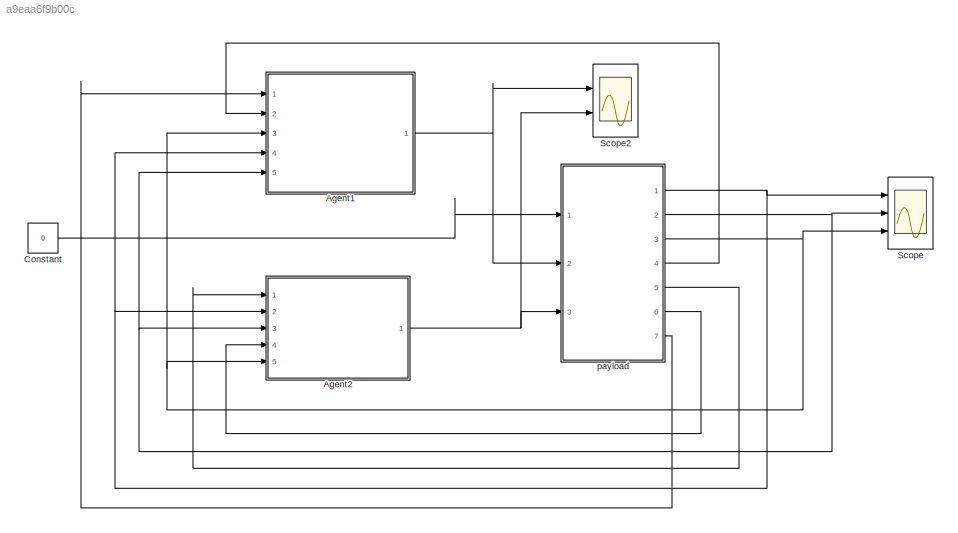
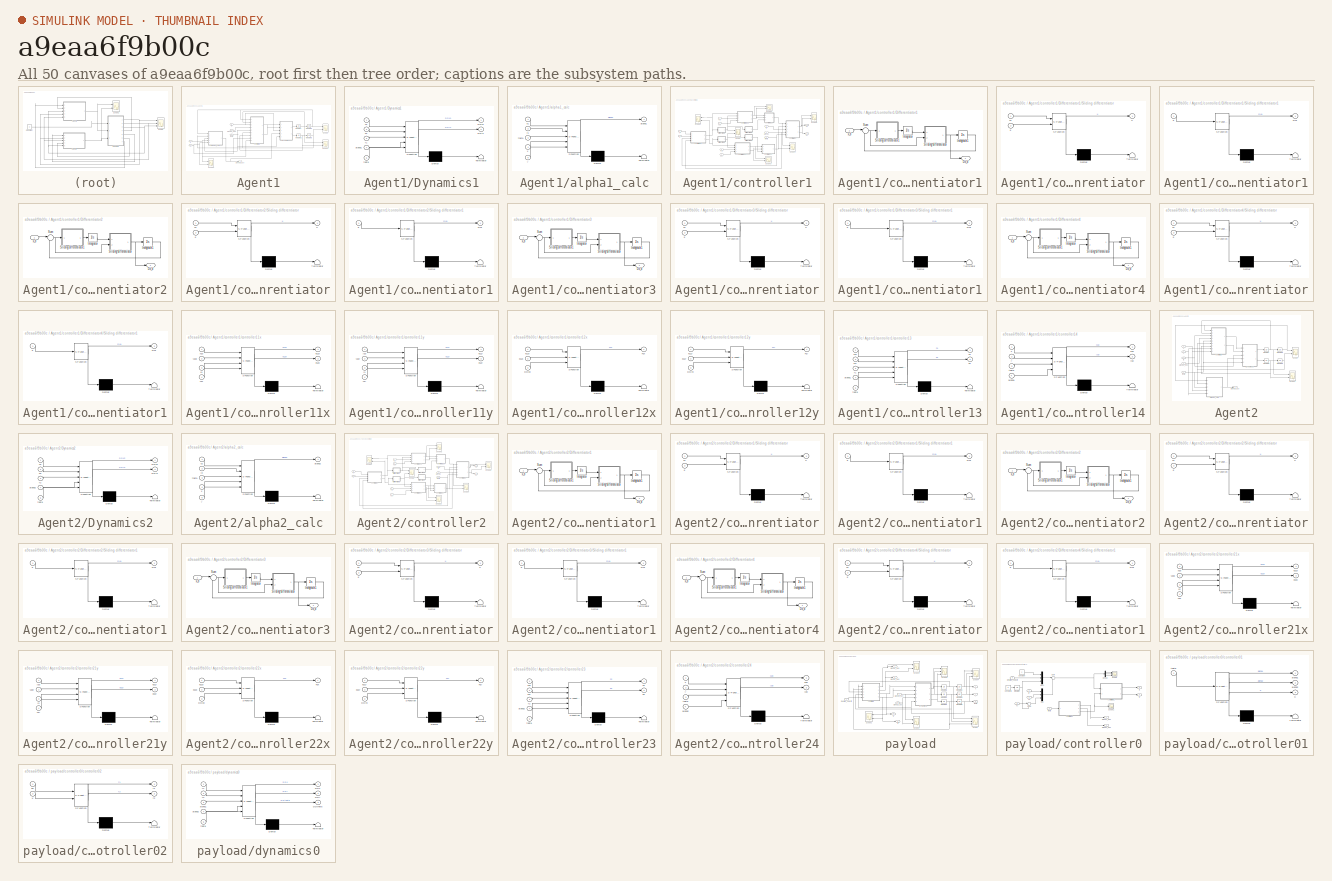
[diagram: thumbnail index - all 50 canvases of the model, root first then tree order]
MODEL slx_a9eaa6f9b00c
KIND model
CONFIG AbsTol = auto
CONFIG EnableMultiTasking = off
CONFIG FixedStep = auto
CONFIG InitFcn = Simple_2Quad_payload_02_const
CONFIG MaxStep = auto
CONFIG MinStep = auto
CONFIG RelTol = 1e-3
CONFIG SampleTimeConstraint = Unconstrained
CONFIG Solver = VariableStepAuto
CONFIG SolverName = VariableStepAuto
CONFIG StartTime = 0.0
CONFIG StopTime = 60
BLOCK [SubSystem] Agent1
  Ports = [5, 1]
  RequestExecContextInheritance = off
BLOCK [SubSystem] Agent1/Dynamics1
  ErrorFcn = Stateflow.Translate.translate
  PermitHierarchicalResolution = ExplicitOnly
  Ports = [5, 2]
  RequestExecContextInheritance = off
  SFBlockType = MATLAB Function
  TreatAsAtomicUnit = on
BLOCK [Demux] Agent1/Dynamics1/ Demux 
  Outputs = 1
  Ports = [1, 1]
BLOCK [S-Function] Agent1/Dynamics1/ SFunction 
  EnableBusSupport = on
  FunctionName = sf_sfun
  Parameters = g,m1
  PortCounts = [5 3]
  Ports = [5, 3]
  SFcnIsStateOwnerBlock = off
  SFunctionDeploymentMode = off
  Tag = Stateflow S-Function Simple_2Quad_payload_02 2
BLOCK [Terminator] Agent1/Dynamics1/ Terminator 
BLOCK [Outport] Agent1/Dynamics1/DDx1
  IconDisplay = Port number
BLOCK [Outport] Agent1/Dynamics1/DDy1
  IconDisplay = Port number
  Port = 2
BLOCK [Inport] Agent1/Dynamics1/alpha1
  IconDisplay = Port number
  Port = 4
BLOCK [Inport] Agent1/Dynamics1/f1
  IconDisplay = Port number
  Port = 3
BLOCK [Inport] Agent1/Dynamics1/h1
  IconDisplay = Port number
BLOCK [Inport] Agent1/Dynamics1/p1
  IconDisplay = Port number
  Port = 2
BLOCK [Inport] Agent1/Dynamics1/theta
  IconDisplay = Port number
  Port = 5
BLOCK [Integrator] Agent1/Integrator
  Ports = [1, 1]
BLOCK [Integrator] Agent1/Integrator1
  Ports = [1, 1]
BLOCK [Integrator] Agent1/Integrator2
  InitialCondition = 1
  Ports = [1, 1]
BLOCK [Integrator] Agent1/Integrator3
  InitialCondition = 10
  Ports = [1, 1]
BLOCK [Scope] Agent1/Scope
  Floating = off
  NumInputPorts = 2
  Ports = [2]
  ScopeSpecificationString = Simulink.scopes.TimeScopeBlockCfg('CurrentConfiguration', extmgr.ConfigurationSet(extmgr.Configuration('Core','General UI',true),extmgr.Configuration('Core','Source UI',true),extmgr.Configuration('Sources','WiredSimulink',true,'DataLoggingVariableName','ScopeData1'),extmgr.Configuration('Visuals','Time Domain',true,'SerializedDisplays',{struct('MinYLimReal','-5017663.365','MaxYLimReal','44103447.7...<+2051ch>
BLOCK [Scope] Agent1/Scope1
  Floating = off
  NumInputPorts = 2
  Ports = [2]
  ScopeSpecificationString = Simulink.scopes.TimeScopeBlockCfg('CurrentConfiguration', extmgr.ConfigurationSet(extmgr.Configuration('Core','General UI',true),extmgr.Configuration('Core','Source UI',true),extmgr.Configuration('Sources','WiredSimulink',true,'DataLoggingVariableName','ScopeData2'),extmgr.Configuration('Visuals','Time Domain',true,'SerializedDisplays',{struct('MinYLimReal','-6568212.52742','MaxYLimReal','57911452...<+2051ch>
BLOCK [Scope] Agent1/Scope2
  Floating = off
  NumInputPorts = 2
  Ports = [2]
  ScopeSpecificationString = Simulink.scopes.TimeScopeBlockCfg('CurrentConfiguration', extmgr.ConfigurationSet(extmgr.Configuration('Core','General UI',true),extmgr.Configuration('Core','Source UI',true),extmgr.Configuration('Sources','WiredSimulink',true,'DataLoggingVariableName','ScopeData14'),extmgr.Configuration('Visuals','Time Domain',true,'SerializedDisplays',{struct('MinYLimReal','52.20098','MaxYLimReal','61.18109','YL...<+2021ch>
BLOCK [Outport] Agent1/alpha1_act
  IconDisplay = Port number
BLOCK [SubSystem] Agent1/alpha1_calc
  ErrorFcn = Stateflow.Translate.translate
  PermitHierarchicalResolution = ExplicitOnly
  Ports = [5, 1]
  RequestExecContextInheritance = off
  SFBlockType = MATLAB Function
  TreatAsAtomicUnit = on
BLOCK [Demux] Agent1/alpha1_calc/ Demux 
  Outputs = 1
  Ports = [1, 1]
BLOCK [S-Function] Agent1/alpha1_calc/ SFunction 
  EnableBusSupport = on
  FunctionName = sf_sfun
  Parameters = d
  PortCounts = [5 2]
  Ports = [5, 2]
  SFcnIsStateOwnerBlock = off
  SFunctionDeploymentMode = off
  Tag = Stateflow S-Function Simple_2Quad_payload_02 11
BLOCK [Terminator] Agent1/alpha1_calc/ Terminator 
BLOCK [Outport] Agent1/alpha1_calc/alpha1
  IconDisplay = Port number
BLOCK [Inport] Agent1/alpha1_calc/theta
  IconDisplay = Port number
  Port = 3
BLOCK [Inport] Agent1/alpha1_calc/x
  IconDisplay = Port number
  Port = 4
BLOCK [Inport] Agent1/alpha1_calc/x1
  IconDisplay = Port number
BLOCK [Inport] Agent1/alpha1_calc/y
  IconDisplay = Port number
  Port = 5
BLOCK [Inport] Agent1/alpha1_calc/y1
  IconDisplay = Port number
  Port = 2
BLOCK [Inport] Agent1/alpha1_des
  IconDisplay = Port number
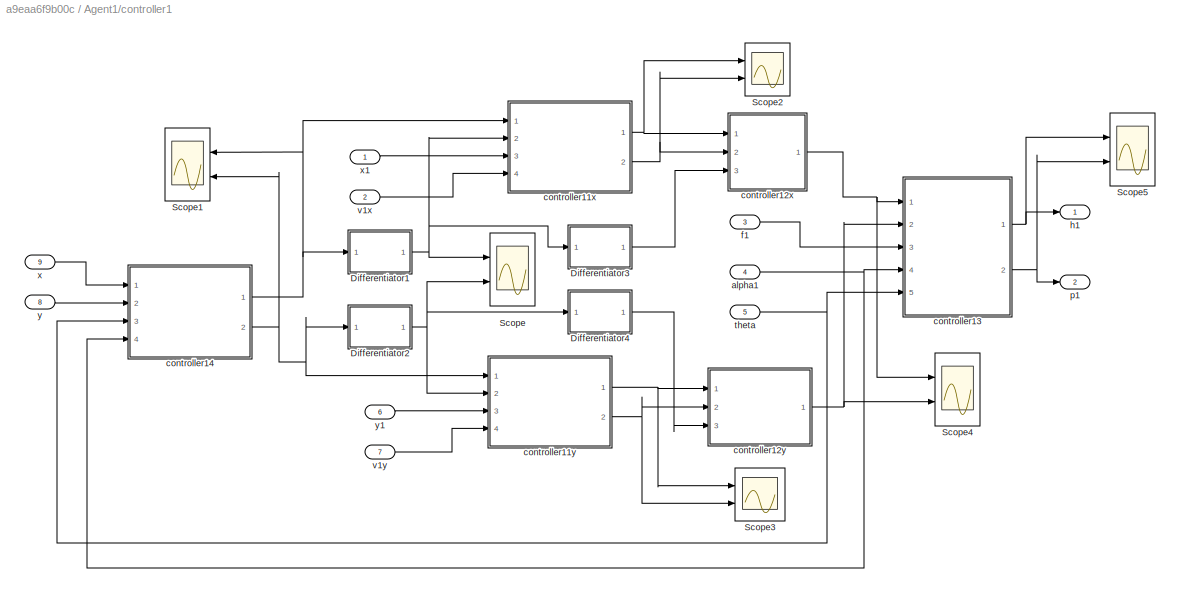
BLOCK [SubSystem] Agent1/controller1
  Ports = [9, 2]
  RequestExecContextInheritance = off
BLOCK [SubSystem] Agent1/controller1/Differentiator1
  Ports = [1, 1]
  RequestExecContextInheritance = off
BLOCK [Outport] Agent1/controller1/Differentiator1/Dx_d
  IconDisplay = Port number
BLOCK [Integrator] Agent1/controller1/Differentiator1/Integrator
  InitialCondition = 1
  Ports = [1, 1]
BLOCK [Integrator] Agent1/controller1/Differentiator1/Integrator1
  InitialCondition = 1
  Ports = [1, 1]
BLOCK [SubSystem] Agent1/controller1/Differentiator1/Sliding differentiator
  ErrorFcn = Stateflow.Translate.translate
  PermitHierarchicalResolution = ExplicitOnly
  Ports = [2, 1]
  RequestExecContextInheritance = off
  SFBlockType = MATLAB Function
  TreatAsAtomicUnit = on
BLOCK [Demux] Agent1/controller1/Differentiator1/Sliding differentiator/ Demux 
  Outputs = 1
  Ports = [1, 1]
BLOCK [S-Function] Agent1/controller1/Differentiator1/Sliding differentiator/ SFunction 
  EnableBusSupport = on
  FunctionName = sf_sfun
  PortCounts = [2 2]
  Ports = [2, 2]
  SFcnIsStateOwnerBlock = off
  SFunctionDeploymentMode = off
  Tag = Stateflow S-Function Simple_2Quad_payload_02 1
BLOCK [Terminator] Agent1/controller1/Differentiator1/Sliding differentiator/ Terminator 
BLOCK [Inport] Agent1/controller1/Differentiator1/Sliding differentiator/e
  IconDisplay = Port number
  Port = 2
BLOCK [Outport] Agent1/controller1/Differentiator1/Sliding differentiator/u
  IconDisplay = Port number
BLOCK [Inport] Agent1/controller1/Differentiator1/Sliding differentiator/u1
  IconDisplay = Port number
BLOCK [SubSystem] Agent1/controller1/Differentiator1/Sliding differentiator1
  ErrorFcn = Stateflow.Translate.translate
  PermitHierarchicalResolution = ExplicitOnly
  Ports = [1, 1]
  RequestExecContextInheritance = off
  SFBlockType = MATLAB Function
  TreatAsAtomicUnit = on
BLOCK [Demux] Agent1/controller1/Differentiator1/Sliding differentiator1/ Demux 
  Outputs = 1
  Ports = [1, 1]
BLOCK [S-Function] Agent1/controller1/Differentiator1/Sliding differentiator1/ SFunction 
  EnableBusSupport = on
  FunctionName = sf_sfun
  PortCounts = [1 2]
  Ports = [1, 2]
  SFcnIsStateOwnerBlock = off
  SFunctionDeploymentMode = off
  Tag = Stateflow S-Function Simple_2Quad_payload_02 3
BLOCK [Terminator] Agent1/controller1/Differentiator1/Sliding differentiator1/ Terminator 
BLOCK [Outport] Agent1/controller1/Differentiator1/Sliding differentiator1/Du1
  IconDisplay = Port number
BLOCK [Inport] Agent1/controller1/Differentiator1/Sliding differentiator1/e
  IconDisplay = Port number
BLOCK [Sum] Agent1/controller1/Differentiator1/Sum
  IconShape = round
  InputSameDT = off
  Inputs = |-+
  OutDataTypeStr = Inherit: Inherit via internal rule
  Ports = [2, 1]
  SaturateOnIntegerOverflow = off
BLOCK [Inport] Agent1/controller1/Differentiator1/x_d
  IconDisplay = Port number
BLOCK [SubSystem] Agent1/controller1/Differentiator2
  Ports = [1, 1]
  RequestExecContextInheritance = off
BLOCK [Outport] Agent1/controller1/Differentiator2/Dx_d
  IconDisplay = Port number
BLOCK [Integrator] Agent1/controller1/Differentiator2/Integrator
  InitialCondition = 1
  Ports = [1, 1]
BLOCK [Integrator] Agent1/controller1/Differentiator2/Integrator1
  InitialCondition = 1
  Ports = [1, 1]
BLOCK [SubSystem] Agent1/controller1/Differentiator2/Sliding differentiator
  ErrorFcn = Stateflow.Translate.translate
  PermitHierarchicalResolution = ExplicitOnly
  Ports = [2, 1]
  RequestExecContextInheritance = off
  SFBlockType = MATLAB Function
  TreatAsAtomicUnit = on
BLOCK [Demux] Agent1/controller1/Differentiator2/Sliding differentiator/ Demux 
  Outputs = 1
  Ports = [1, 1]
BLOCK [S-Function] Agent1/controller1/Differentiator2/Sliding differentiator/ SFunction 
  EnableBusSupport = on
  FunctionName = sf_sfun
  PortCounts = [2 2]
  Ports = [2, 2]
  SFcnIsStateOwnerBlock = off
  SFunctionDeploymentMode = off
  Tag = Stateflow S-Function Simple_2Quad_payload_02 4
BLOCK [Terminator] Agent1/controller1/Differentiator2/Sliding differentiator/ Terminator 
BLOCK [Inport] Agent1/controller1/Differentiator2/Sliding differentiator/e
  IconDisplay = Port number
  Port = 2
BLOCK [Outport] Agent1/controller1/Differentiator2/Sliding differentiator/u
  IconDisplay = Port number
BLOCK [Inport] Agent1/controller1/Differentiator2/Sliding differentiator/u1
  IconDisplay = Port number
BLOCK [SubSystem] Agent1/controller1/Differentiator2/Sliding differentiator1
  ErrorFcn = Stateflow.Translate.translate
  PermitHierarchicalResolution = ExplicitOnly
  Ports = [1, 1]
  RequestExecContextInheritance = off
  SFBlockType = MATLAB Function
  TreatAsAtomicUnit = on
BLOCK [Demux] Agent1/controller1/Differentiator2/Sliding differentiator1/ Demux 
  Outputs = 1
  Ports = [1, 1]
BLOCK [S-Function] Agent1/controller1/Differentiator2/Sliding differentiator1/ SFunction 
  EnableBusSupport = on
  FunctionName = sf_sfun
  PortCounts = [1 2]
  Ports = [1, 2]
  SFcnIsStateOwnerBlock = off
  SFunctionDeploymentMode = off
  Tag = Stateflow S-Function Simple_2Quad_payload_02 25
BLOCK [Terminator] Agent1/controller1/Differentiator2/Sliding differentiator1/ Terminator 
BLOCK [Outport] Agent1/controller1/Differentiator2/Sliding differentiator1/Du1
  IconDisplay = Port number
BLOCK [Inport] Agent1/controller1/Differentiator2/Sliding differentiator1/e
  IconDisplay = Port number
BLOCK [Sum] Agent1/controller1/Differentiator2/Sum
  IconShape = round
  InputSameDT = off
  Inputs = |-+
  OutDataTypeStr = Inherit: Inherit via internal rule
  Ports = [2, 1]
  SaturateOnIntegerOverflow = off
BLOCK [Inport] Agent1/controller1/Differentiator2/x_d
  IconDisplay = Port number
BLOCK [SubSystem] Agent1/controller1/Differentiator3
  Ports = [1, 1]
  RequestExecContextInheritance = off
BLOCK [Outport] Agent1/controller1/Differentiator3/Dx_d
  IconDisplay = Port number
BLOCK [Integrator] Agent1/controller1/Differentiator3/Integrator
  InitialCondition = 1
  Ports = [1, 1]
BLOCK [Integrator] Agent1/controller1/Differentiator3/Integrator1
  InitialCondition = 1
  Ports = [1, 1]
BLOCK [SubSystem] Agent1/controller1/Differentiator3/Sliding differentiator
  ErrorFcn = Stateflow.Translate.translate
  PermitHierarchicalResolution = ExplicitOnly
  Ports = [2, 1]
  RequestExecContextInheritance = off
  SFBlockType = MATLAB Function
  TreatAsAtomicUnit = on
BLOCK [Demux] Agent1/controller1/Differentiator3/Sliding differentiator/ Demux 
  Outputs = 1
  Ports = [1, 1]
BLOCK [S-Function] Agent1/controller1/Differentiator3/Sliding differentiator/ SFunction 
  EnableBusSupport = on
  FunctionName = sf_sfun
  PortCounts = [2 2]
  Ports = [2, 2]
  SFcnIsStateOwnerBlock = off
  SFunctionDeploymentMode = off
  Tag = Stateflow S-Function Simple_2Quad_payload_02 26
BLOCK [Terminator] Agent1/controller1/Differentiator3/Sliding differentiator/ Terminator 
BLOCK [Inport] Agent1/controller1/Differentiator3/Sliding differentiator/e
  IconDisplay = Port number
  Port = 2
BLOCK [Outport] Agent1/controller1/Differentiator3/Sliding differentiator/u
  IconDisplay = Port number
BLOCK [Inport] Agent1/controller1/Differentiator3/Sliding differentiator/u1
  IconDisplay = Port number
BLOCK [SubSystem] Agent1/controller1/Differentiator3/Sliding differentiator1
  ErrorFcn = Stateflow.Translate.translate
  PermitHierarchicalResolution = ExplicitOnly
  Ports = [1, 1]
  RequestExecContextInheritance = off
  SFBlockType = MATLAB Function
  TreatAsAtomicUnit = on
BLOCK [Demux] Agent1/controller1/Differentiator3/Sliding differentiator1/ Demux 
  Outputs = 1
  Ports = [1, 1]
BLOCK [S-Function] Agent1/controller1/Differentiator3/Sliding differentiator1/ SFunction 
  EnableBusSupport = on
  FunctionName = sf_sfun
  PortCounts = [1 2]
  Ports = [1, 2]
  SFcnIsStateOwnerBlock = off
  SFunctionDeploymentMode = off
  Tag = Stateflow S-Function Simple_2Quad_payload_02 27
BLOCK [Terminator] Agent1/controller1/Differentiator3/Sliding differentiator1/ Terminator 
BLOCK [Outport] Agent1/controller1/Differentiator3/Sliding differentiator1/Du1
  IconDisplay = Port number
BLOCK [Inport] Agent1/controller1/Differentiator3/Sliding differentiator1/e
  IconDisplay = Port number
BLOCK [Sum] Agent1/controller1/Differentiator3/Sum
  IconShape = round
  InputSameDT = off
  Inputs = |-+
  OutDataTypeStr = Inherit: Inherit via internal rule
  Ports = [2, 1]
  SaturateOnIntegerOverflow = off
BLOCK [Inport] Agent1/controller1/Differentiator3/x_d
  IconDisplay = Port number
BLOCK [SubSystem] Agent1/controller1/Differentiator4
  Ports = [1, 1]
  RequestExecContextInheritance = off
BLOCK [Outport] Agent1/controller1/Differentiator4/Dx_d
  IconDisplay = Port number
BLOCK [Integrator] Agent1/controller1/Differentiator4/Integrator
  InitialCondition = 1
  Ports = [1, 1]
BLOCK [Integrator] Agent1/controller1/Differentiator4/Integrator1
  InitialCondition = 1
  Ports = [1, 1]
BLOCK [SubSystem] Agent1/controller1/Differentiator4/Sliding differentiator
  ErrorFcn = Stateflow.Translate.translate
  PermitHierarchicalResolution = ExplicitOnly
  Ports = [2, 1]
  RequestExecContextInheritance = off
  SFBlockType = MATLAB Function
  TreatAsAtomicUnit = on
BLOCK [Demux] Agent1/controller1/Differentiator4/Sliding differentiator/ Demux 
  Outputs = 1
  Ports = [1, 1]
BLOCK [S-Function] Agent1/controller1/Differentiator4/Sliding differentiator/ SFunction 
  EnableBusSupport = on
  FunctionName = sf_sfun
  PortCounts = [2 2]
  Ports = [2, 2]
  SFcnIsStateOwnerBlock = off
  SFunctionDeploymentMode = off
  Tag = Stateflow S-Function Simple_2Quad_payload_02 28
BLOCK [Terminator] Agent1/controller1/Differentiator4/Sliding differentiator/ Terminator 
BLOCK [Inport] Agent1/controller1/Differentiator4/Sliding differentiator/e
  IconDisplay = Port number
  Port = 2
BLOCK [Outport] Agent1/controller1/Differentiator4/Sliding differentiator/u
  IconDisplay = Port number
BLOCK [Inport] Agent1/controller1/Differentiator4/Sliding differentiator/u1
  IconDisplay = Port number
BLOCK [SubSystem] Agent1/controller1/Differentiator4/Sliding differentiator1
  ErrorFcn = Stateflow.Translate.translate
  PermitHierarchicalResolution = ExplicitOnly
  Ports = [1, 1]
  RequestExecContextInheritance = off
  SFBlockType = MATLAB Function
  TreatAsAtomicUnit = on
BLOCK [Demux] Agent1/controller1/Differentiator4/Sliding differentiator1/ Demux 
  Outputs = 1
  Ports = [1, 1]
BLOCK [S-Function] Agent1/controller1/Differentiator4/Sliding differentiator1/ SFunction 
  EnableBusSupport = on
  FunctionName = sf_sfun
  PortCounts = [1 2]
  Ports = [1, 2]
  SFcnIsStateOwnerBlock = off
  SFunctionDeploymentMode = off
  Tag = Stateflow S-Function Simple_2Quad_payload_02 29
BLOCK [Terminator] Agent1/controller1/Differentiator4/Sliding differentiator1/ Terminator 
BLOCK [Outport] Agent1/controller1/Differentiator4/Sliding differentiator1/Du1
  IconDisplay = Port number
BLOCK [Inport] Agent1/controller1/Differentiator4/Sliding differentiator1/e
  IconDisplay = Port number
BLOCK [Sum] Agent1/controller1/Differentiator4/Sum
  IconShape = round
  InputSameDT = off
  Inputs = |-+
  OutDataTypeStr = Inherit: Inherit via internal rule
  Ports = [2, 1]
  SaturateOnIntegerOverflow = off
BLOCK [Inport] Agent1/controller1/Differentiator4/x_d
  IconDisplay = Port number
BLOCK [Scope] Agent1/controller1/Scope
  Floating = off
  NumInputPorts = 2
  Ports = [2]
  ScopeSpecificationString = Simulink.scopes.TimeScopeBlockCfg('CurrentConfiguration', extmgr.ConfigurationSet(extmgr.Configuration('Core','General UI',true),extmgr.Configuration('Core','Source UI',true),extmgr.Configuration('Sources','WiredSimulink',true,'DataLoggingVariableName','ScopeData5'),extmgr.Configuration('Visuals','Time Domain',true,'SerializedDisplays',{struct('MinYLimReal','-97.63976','MaxYLimReal','870.75189','Y...<+2035ch>
BLOCK [Scope] Agent1/controller1/Scope1
  Floating = off
  NumInputPorts = 2
  Ports = [2]
  ScopeSpecificationString = Simulink.scopes.TimeScopeBlockCfg('CurrentConfiguration', extmgr.ConfigurationSet(extmgr.Configuration('Core','General UI',true),extmgr.Configuration('Core','Source UI',true),extmgr.Configuration('Sources','WiredSimulink',true,'DataLoggingVariableName','ScopeData6'),extmgr.Configuration('Visuals','Time Domain',true,'SerializedDisplays',{struct('MinYLimReal','-66287.40295','MaxYLimReal','596576.726...<+2025ch>
BLOCK [Scope] Agent1/controller1/Scope2
  Floating = off
  NumInputPorts = 2
  Ports = [2]
  ScopeSpecificationString = Simulink.scopes.TimeScopeBlockCfg('CurrentConfiguration', extmgr.ConfigurationSet(extmgr.Configuration('Core','General UI',true),extmgr.Configuration('Core','Source UI',true),extmgr.Configuration('Sources','WiredSimulink',true,'DataLoggingVariableName','ScopeData7'),extmgr.Configuration('Visuals','Time Domain',true,'SerializedDisplays',{struct('MinYLimReal','-0.63787','MaxYLimReal','1.48719','YLab...<+2007ch>
BLOCK [Scope] Agent1/controller1/Scope3
  Floating = off
  NumInputPorts = 2
  Ports = [2]
  ScopeSpecificationString = Simulink.scopes.TimeScopeBlockCfg('CurrentConfiguration', extmgr.ConfigurationSet(extmgr.Configuration('Core','General UI',true),extmgr.Configuration('Core','Source UI',true),extmgr.Configuration('Sources','WiredSimulink',true,'DataLoggingVariableName','ScopeData8'),extmgr.Configuration('Visuals','Time Domain',true,'SerializedDisplays',{struct('MinYLimReal','-4.09265','MaxYLimReal','1.59034','YLab...<+2006ch>
BLOCK [Scope] Agent1/controller1/Scope4
  Floating = off
  NumInputPorts = 2
  Ports = [2]
  ScopeSpecificationString = Simulink.scopes.TimeScopeBlockCfg('CurrentConfiguration', extmgr.ConfigurationSet(extmgr.Configuration('Core','General UI',true),extmgr.Configuration('Core','Source UI',true),extmgr.Configuration('Sources','WiredSimulink',true,'DataLoggingVariableName','ScopeData9'),extmgr.Configuration('Visuals','Time Domain',true,'SerializedDisplays',{struct('MinYLimReal','-197.58082','MaxYLimReal','1732.62749',...<+2035ch>
BLOCK [Scope] Agent1/controller1/Scope5
  Floating = off
  NumInputPorts = 2
  Ports = [2]
  ScopeSpecificationString = Simulink.scopes.TimeScopeBlockCfg('CurrentConfiguration', extmgr.ConfigurationSet(extmgr.Configuration('Core','General UI',true),extmgr.Configuration('Core','Source UI',true),extmgr.Configuration('Sources','WiredSimulink',true,'DataLoggingVariableName','ScopeData10'),extmgr.Configuration('Visuals','Time Domain',true,'SerializedDisplays',{struct('MinYLimReal','-213.50492','MaxYLimReal','1875.94542'...<+2040ch>
BLOCK [Inport] Agent1/controller1/alpha1
  IconDisplay = Port number
  Port = 4
BLOCK [SubSystem] Agent1/controller1/controller11x
  ErrorFcn = Stateflow.Translate.translate
  PermitHierarchicalResolution = ExplicitOnly
  Ports = [4, 2]
  RequestExecContextInheritance = off
  SFBlockType = MATLAB Function
  TreatAsAtomicUnit = on
BLOCK [Demux] Agent1/controller1/controller11x/ Demux 
  Outputs = 1
  Ports = [1, 1]
BLOCK [S-Function] Agent1/controller1/controller11x/ SFunction 
  EnableBusSupport = on
  FunctionName = sf_sfun
  PortCounts = [4 3]
  Ports = [4, 3]
  SFcnIsStateOwnerBlock = off
  SFunctionDeploymentMode = off
  Tag = Stateflow S-Function Simple_2Quad_payload_02 30
BLOCK [Terminator] Agent1/controller1/controller11x/ Terminator 
BLOCK [Outport] Agent1/controller1/controller11x/e11x
  IconDisplay = Port number
BLOCK [Outport] Agent1/controller1/controller11x/e12x
  IconDisplay = Port number
  Port = 2
BLOCK [Inport] Agent1/controller1/controller11x/v1dx
  IconDisplay = Port number
  Port = 2
BLOCK [Inport] Agent1/controller1/controller11x/v1x
  IconDisplay = Port number
  Port = 4
BLOCK [Inport] Agent1/controller1/controller11x/x1
  IconDisplay = Port number
  Port = 3
BLOCK [Inport] Agent1/controller1/controller11x/x1d
  IconDisplay = Port number
BLOCK [SubSystem] Agent1/controller1/controller11y
  ErrorFcn = Stateflow.Translate.translate
  PermitHierarchicalResolution = ExplicitOnly
  Ports = [4, 2]
  RequestExecContextInheritance = off
  SFBlockType = MATLAB Function
  TreatAsAtomicUnit = on
BLOCK [Demux] Agent1/controller1/controller11y/ Demux 
  Outputs = 1
  Ports = [1, 1]
BLOCK [S-Function] Agent1/controller1/controller11y/ SFunction 
  EnableBusSupport = on
  FunctionName = sf_sfun
  PortCounts = [4 3]
  Ports = [4, 3]
  SFcnIsStateOwnerBlock = off
  SFunctionDeploymentMode = off
  Tag = Stateflow S-Function Simple_2Quad_payload_02 31
BLOCK [Terminator] Agent1/controller1/controller11y/ Terminator 
BLOCK [Outport] Agent1/controller1/controller11y/e11y
  IconDisplay = Port number
BLOCK [Outport] Agent1/controller1/controller11y/e12y
  IconDisplay = Port number
  Port = 2
BLOCK [Inport] Agent1/controller1/controller11y/v1dy
  IconDisplay = Port number
  Port = 2
BLOCK [Inport] Agent1/controller1/controller11y/v1y
  IconDisplay = Port number
  Port = 4
BLOCK [Inport] Agent1/controller1/controller11y/y1
  IconDisplay = Port number
  Port = 3
BLOCK [Inport] Agent1/controller1/controller11y/y1d
  IconDisplay = Port number
BLOCK [SubSystem] Agent1/controller1/controller12x
  ErrorFcn = Stateflow.Translate.translate
  PermitHierarchicalResolution = ExplicitOnly
  Ports = [3, 1]
  RequestExecContextInheritance = off
  SFBlockType = MATLAB Function
  TreatAsAtomicUnit = on
BLOCK [Demux] Agent1/controller1/controller12x/ Demux 
  Outputs = 1
  Ports = [1, 1]
BLOCK [S-Function] Agent1/controller1/controller12x/ SFunction 
  EnableBusSupport = on
  FunctionName = sf_sfun
  PortCounts = [3 2]
  Ports = [3, 2]
  SFcnIsStateOwnerBlock = off
  SFunctionDeploymentMode = off
  Tag = Stateflow S-Function Simple_2Quad_payload_02 32
BLOCK [Terminator] Agent1/controller1/controller12x/ Terminator 
BLOCK [Inport] Agent1/controller1/controller12x/DDxd
  IconDisplay = Port number
  Port = 3
BLOCK [Outport] Agent1/controller1/controller12x/F1x
  IconDisplay = Port number
BLOCK [Inport] Agent1/controller1/controller12x/e11x
  IconDisplay = Port number
BLOCK [Inport] Agent1/controller1/controller12x/e12x
  IconDisplay = Port number
  Port = 2
BLOCK [SubSystem] Agent1/controller1/controller12y
  ErrorFcn = Stateflow.Translate.translate
  PermitHierarchicalResolution = ExplicitOnly
  Ports = [3, 1]
  RequestExecContextInheritance = off
  SFBlockType = MATLAB Function
  TreatAsAtomicUnit = on
BLOCK [Demux] Agent1/controller1/controller12y/ Demux 
  Outputs = 1
  Ports = [1, 1]
BLOCK [S-Function] Agent1/controller1/controller12y/ SFunction 
  EnableBusSupport = on
  FunctionName = sf_sfun
  PortCounts = [3 2]
  Ports = [3, 2]
  SFcnIsStateOwnerBlock = off
  SFunctionDeploymentMode = off
  Tag = Stateflow S-Function Simple_2Quad_payload_02 33
BLOCK [Terminator] Agent1/controller1/controller12y/ Terminator 
BLOCK [Inport] Agent1/controller1/controller12y/DDyd
  IconDisplay = Port number
  Port = 3
BLOCK [Outport] Agent1/controller1/controller12y/F1y
  IconDisplay = Port number
BLOCK [Inport] Agent1/controller1/controller12y/e11y
  IconDisplay = Port number
BLOCK [Inport] Agent1/controller1/controller12y/e12y
  IconDisplay = Port number
  Port = 2
BLOCK [SubSystem] Agent1/controller1/controller13
  ErrorFcn = Stateflow.Translate.translate
  PermitHierarchicalResolution = ExplicitOnly
  Ports = [5, 2]
  RequestExecContextInheritance = off
  SFBlockType = MATLAB Function
  TreatAsAtomicUnit = on
BLOCK [Demux] Agent1/controller1/controller13/ Demux 
  Outputs = 1
  Ports = [1, 1]
BLOCK [S-Function] Agent1/controller1/controller13/ SFunction 
  EnableBusSupport = on
  FunctionName = sf_sfun
  Parameters = g,m1
  PortCounts = [5 3]
  Ports = [5, 3]
  SFcnIsStateOwnerBlock = off
  SFunctionDeploymentMode = off
  Tag = Stateflow S-Function Simple_2Quad_payload_02 34
BLOCK [Terminator] Agent1/controller1/controller13/ Terminator 
BLOCK [Inport] Agent1/controller1/controller13/F1x
  IconDisplay = Port number
BLOCK [Inport] Agent1/controller1/controller13/F1y
  IconDisplay = Port number
  Port = 2
BLOCK [Inport] Agent1/controller1/controller13/alpha1
  IconDisplay = Port number
  Port = 4
BLOCK [Inport] Agent1/controller1/controller13/f1
  IconDisplay = Port number
  Port = 3
BLOCK [Outport] Agent1/controller1/controller13/h1
  IconDisplay = Port number
BLOCK [Outport] Agent1/controller1/controller13/p1
  IconDisplay = Port number
  Port = 2
BLOCK [Inport] Agent1/controller1/controller13/theta
  IconDisplay = Port number
  Port = 5
BLOCK [SubSystem] Agent1/controller1/controller14
  ErrorFcn = Stateflow.Translate.translate
  PermitHierarchicalResolution = ExplicitOnly
  Ports = [4, 2]
  RequestExecContextInheritance = off
  SFBlockType = MATLAB Function
  TreatAsAtomicUnit = on
BLOCK [Demux] Agent1/controller1/controller14/ Demux 
  Outputs = 1
  Ports = [1, 1]
BLOCK [S-Function] Agent1/controller1/controller14/ SFunction 
  EnableBusSupport = on
  FunctionName = sf_sfun
  Parameters = d,l1
  PortCounts = [4 3]
  Ports = [4, 3]
  SFcnIsStateOwnerBlock = off
  SFunctionDeploymentMode = off
  Tag = Stateflow S-Function Simple_2Quad_payload_02 35
BLOCK [Terminator] Agent1/controller1/controller14/ Terminator 
BLOCK [Inport] Agent1/controller1/controller14/alpha1
  IconDisplay = Port number
  Port = 4
BLOCK [Inport] Agent1/controller1/controller14/theta
  IconDisplay = Port number
  Port = 3
BLOCK [Inport] Agent1/controller1/controller14/x
  IconDisplay = Port number
BLOCK [Outport] Agent1/controller1/controller14/x1d
  IconDisplay = Port number
BLOCK [Inport] Agent1/controller1/controller14/y
  IconDisplay = Port number
  Port = 2
BLOCK [Outport] Agent1/controller1/controller14/y1d
  IconDisplay = Port number
  Port = 2
BLOCK [Inport] Agent1/controller1/f1
  IconDisplay = Port number
  Port = 3
BLOCK [Outport] Agent1/controller1/h1
  IconDisplay = Port number
BLOCK [Outport] Agent1/controller1/p1
  IconDisplay = Port number
  Port = 2
BLOCK [Inport] Agent1/controller1/theta
  IconDisplay = Port number
  Port = 5
BLOCK [Inport] Agent1/controller1/v1x
  IconDisplay = Port number
  Port = 2
BLOCK [Inport] Agent1/controller1/v1y
  IconDisplay = Port number
  Port = 7
BLOCK [Inport] Agent1/controller1/x
  IconDisplay = Port number
  Port = 9
BLOCK [Inport] Agent1/controller1/x1
  IconDisplay = Port number
BLOCK [Inport] Agent1/controller1/y
  IconDisplay = Port number
  Port = 8
BLOCK [Inport] Agent1/controller1/y1
  IconDisplay = Port number
  Port = 6
BLOCK [Inport] Agent1/f1
  IconDisplay = Port number
  Port = 2
BLOCK [Inport] Agent1/theta
  IconDisplay = Port number
  Port = 3
BLOCK [Inport] Agent1/x
  IconDisplay = Port number
  Port = 4
BLOCK [Inport] Agent1/y
  IconDisplay = Port number
  Port = 5
BLOCK [SubSystem] Agent2
  Ports = [5, 1]
  RequestExecContextInheritance = off
BLOCK [SubSystem] Agent2/Dynamics2
  ErrorFcn = Stateflow.Translate.translate
  PermitHierarchicalResolution = ExplicitOnly
  Ports = [5, 2]
  RequestExecContextInheritance = off
  SFBlockType = MATLAB Function
  TreatAsAtomicUnit = on
BLOCK [Demux] Agent2/Dynamics2/ Demux 
  Outputs = 1
  Ports = [1, 1]
BLOCK [S-Function] Agent2/Dynamics2/ SFunction 
  EnableBusSupport = on
  FunctionName = sf_sfun
  Parameters = g,m2
  PortCounts = [5 3]
  Ports = [5, 3]
  SFcnIsStateOwnerBlock = off
  SFunctionDeploymentMode = off
  Tag = Stateflow S-Function Simple_2Quad_payload_02 5
BLOCK [Terminator] Agent2/Dynamics2/ Terminator 
BLOCK [Outport] Agent2/Dynamics2/DDx2
  IconDisplay = Port number
BLOCK [Outport] Agent2/Dynamics2/DDy2
  IconDisplay = Port number
  Port = 2
BLOCK [Inport] Agent2/Dynamics2/alpha2
  IconDisplay = Port number
  Port = 4
BLOCK [Inport] Agent2/Dynamics2/f2
  IconDisplay = Port number
  Port = 3
BLOCK [Inport] Agent2/Dynamics2/h2
  IconDisplay = Port number
BLOCK [Inport] Agent2/Dynamics2/p2
  IconDisplay = Port number
  Port = 2
BLOCK [Inport] Agent2/Dynamics2/theta
  IconDisplay = Port number
  Port = 5
BLOCK [Integrator] Agent2/Integrator
  Ports = [1, 1]
BLOCK [Integrator] Agent2/Integrator1
  Ports = [1, 1]
BLOCK [Integrator] Agent2/Integrator2
  InitialCondition = -1
  Ports = [1, 1]
BLOCK [Integrator] Agent2/Integrator3
  InitialCondition = 10
  Ports = [1, 1]
BLOCK [Scope] Agent2/Scope
  Floating = off
  NumInputPorts = 2
  Ports = [2]
  ScopeSpecificationString = Simulink.scopes.TimeScopeBlockCfg('CurrentConfiguration', extmgr.ConfigurationSet(extmgr.Configuration('Core','General UI',true),extmgr.Configuration('Core','Source UI',true),extmgr.Configuration('Sources','WiredSimulink',true,'DataLoggingVariableName','ScopeData3'),extmgr.Configuration('Visuals','Time Domain',true,'SerializedDisplays',{struct('MinYLimReal','-64686.12804','MaxYLimReal','582162.224...<+2040ch>
BLOCK [Scope] Agent2/Scope1
  Floating = off
  NumInputPorts = 2
  Ports = [2]
  ScopeSpecificationString = Simulink.scopes.TimeScopeBlockCfg('CurrentConfiguration', extmgr.ConfigurationSet(extmgr.Configuration('Core','General UI',true),extmgr.Configuration('Core','Source UI',true),extmgr.Configuration('Sources','WiredSimulink',true,'DataLoggingVariableName','ScopeData4'),extmgr.Configuration('Visuals','Time Domain',true,'SerializedDisplays',{struct('MinYLimReal','-3171.90344','MaxYLimReal','28542.31183...<+2033ch>
BLOCK [Outport] Agent2/alpha2_act
  IconDisplay = Port number
BLOCK [SubSystem] Agent2/alpha2_calc
  ErrorFcn = Stateflow.Translate.translate
  PermitHierarchicalResolution = ExplicitOnly
  Ports = [5, 1]
  RequestExecContextInheritance = off
  SFBlockType = MATLAB Function
  TreatAsAtomicUnit = on
BLOCK [Demux] Agent2/alpha2_calc/ Demux 
  Outputs = 1
  Ports = [1, 1]
BLOCK [S-Function] Agent2/alpha2_calc/ SFunction 
  EnableBusSupport = on
  FunctionName = sf_sfun
  Parameters = d
  PortCounts = [5 2]
  Ports = [5, 2]
  SFcnIsStateOwnerBlock = off
  SFunctionDeploymentMode = off
  Tag = Stateflow S-Function Simple_2Quad_payload_02 16
BLOCK [Terminator] Agent2/alpha2_calc/ Terminator 
BLOCK [Outport] Agent2/alpha2_calc/alpha2
  IconDisplay = Port number
BLOCK [Inport] Agent2/alpha2_calc/theta
  IconDisplay = Port number
  Port = 3
BLOCK [Inport] Agent2/alpha2_calc/x
  IconDisplay = Port number
  Port = 4
BLOCK [Inport] Agent2/alpha2_calc/x2
  IconDisplay = Port number
BLOCK [Inport] Agent2/alpha2_calc/y
  IconDisplay = Port number
  Port = 5
BLOCK [Inport] Agent2/alpha2_calc/y2
  IconDisplay = Port number
  Port = 2
BLOCK [Inport] Agent2/alpha2_des
  IconDisplay = Port number
  Port = 4
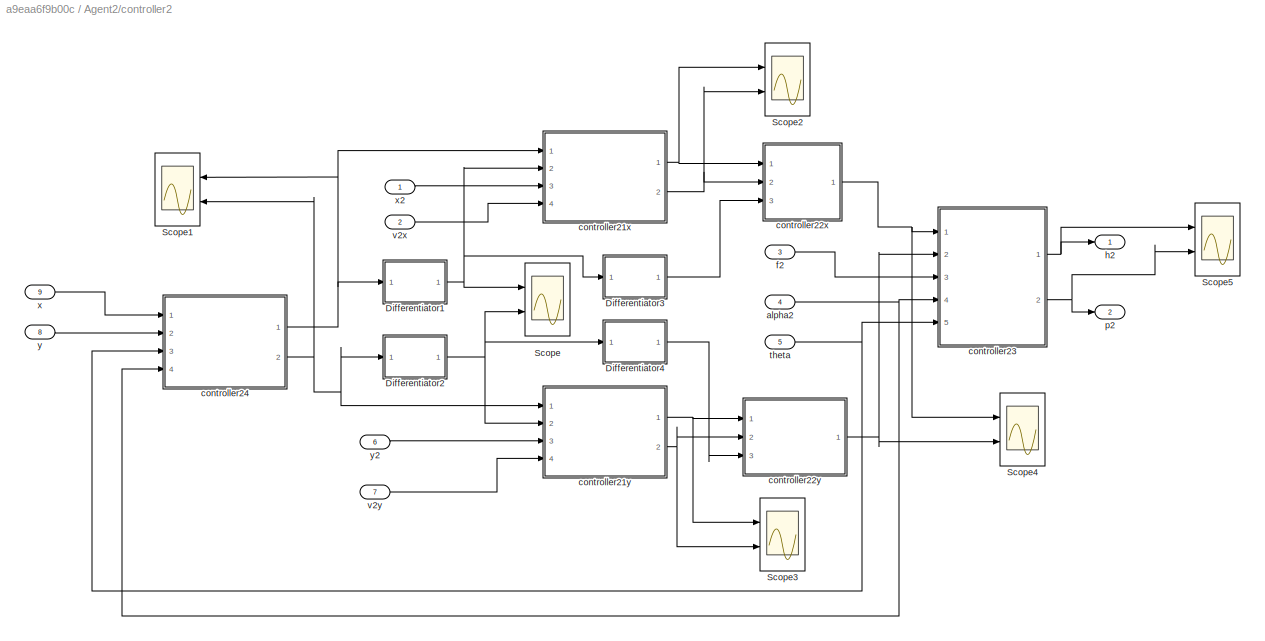
BLOCK [SubSystem] Agent2/controller2
  Ports = [9, 2]
  RequestExecContextInheritance = off
BLOCK [SubSystem] Agent2/controller2/Differentiator1
  Ports = [1, 1]
  RequestExecContextInheritance = off
BLOCK [Outport] Agent2/controller2/Differentiator1/Dx_d
  IconDisplay = Port number
BLOCK [Integrator] Agent2/controller2/Differentiator1/Integrator
  InitialCondition = 1
  Ports = [1, 1]
BLOCK [Integrator] Agent2/controller2/Differentiator1/Integrator1
  InitialCondition = 1
  Ports = [1, 1]
BLOCK [SubSystem] Agent2/controller2/Differentiator1/Sliding differentiator
  ErrorFcn = Stateflow.Translate.translate
  PermitHierarchicalResolution = ExplicitOnly
  Ports = [2, 1]
  RequestExecContextInheritance = off
  SFBlockType = MATLAB Function
  TreatAsAtomicUnit = on
BLOCK [Demux] Agent2/controller2/Differentiator1/Sliding differentiator/ Demux 
  Outputs = 1
  Ports = [1, 1]
BLOCK [S-Function] Agent2/controller2/Differentiator1/Sliding differentiator/ SFunction 
  EnableBusSupport = on
  FunctionName = sf_sfun
  PortCounts = [2 2]
  Ports = [2, 2]
  SFcnIsStateOwnerBlock = off
  SFunctionDeploymentMode = off
  Tag = Stateflow S-Function Simple_2Quad_payload_02 17
BLOCK [Terminator] Agent2/controller2/Differentiator1/Sliding differentiator/ Terminator 
BLOCK [Inport] Agent2/controller2/Differentiator1/Sliding differentiator/e
  IconDisplay = Port number
  Port = 2
BLOCK [Outport] Agent2/controller2/Differentiator1/Sliding differentiator/u
  IconDisplay = Port number
BLOCK [Inport] Agent2/controller2/Differentiator1/Sliding differentiator/u1
  IconDisplay = Port number
BLOCK [SubSystem] Agent2/controller2/Differentiator1/Sliding differentiator1
  ErrorFcn = Stateflow.Translate.translate
  PermitHierarchicalResolution = ExplicitOnly
  Ports = [1, 1]
  RequestExecContextInheritance = off
  SFBlockType = MATLAB Function
  TreatAsAtomicUnit = on
BLOCK [Demux] Agent2/controller2/Differentiator1/Sliding differentiator1/ Demux 
  Outputs = 1
  Ports = [1, 1]
BLOCK [S-Function] Agent2/controller2/Differentiator1/Sliding differentiator1/ SFunction 
  EnableBusSupport = on
  FunctionName = sf_sfun
  PortCounts = [1 2]
  Ports = [1, 2]
  SFcnIsStateOwnerBlock = off
  SFunctionDeploymentMode = off
  Tag = Stateflow S-Function Simple_2Quad_payload_02 18
BLOCK [Terminator] Agent2/controller2/Differentiator1/Sliding differentiator1/ Terminator 
BLOCK [Outport] Agent2/controller2/Differentiator1/Sliding differentiator1/Du1
  IconDisplay = Port number
BLOCK [Inport] Agent2/controller2/Differentiator1/Sliding differentiator1/e
  IconDisplay = Port number
BLOCK [Sum] Agent2/controller2/Differentiator1/Sum
  IconShape = round
  InputSameDT = off
  Inputs = |-+
  OutDataTypeStr = Inherit: Inherit via internal rule
  Ports = [2, 1]
  SaturateOnIntegerOverflow = off
BLOCK [Inport] Agent2/controller2/Differentiator1/x_d
  IconDisplay = Port number
BLOCK [SubSystem] Agent2/controller2/Differentiator2
  Ports = [1, 1]
  RequestExecContextInheritance = off
BLOCK [Outport] Agent2/controller2/Differentiator2/Dx_d
  IconDisplay = Port number
BLOCK [Integrator] Agent2/controller2/Differentiator2/Integrator
  InitialCondition = 1
  Ports = [1, 1]
BLOCK [Integrator] Agent2/controller2/Differentiator2/Integrator1
  InitialCondition = 1
  Ports = [1, 1]
BLOCK [SubSystem] Agent2/controller2/Differentiator2/Sliding differentiator
  ErrorFcn = Stateflow.Translate.translate
  PermitHierarchicalResolution = ExplicitOnly
  Ports = [2, 1]
  RequestExecContextInheritance = off
  SFBlockType = MATLAB Function
  TreatAsAtomicUnit = on
BLOCK [Demux] Agent2/controller2/Differentiator2/Sliding differentiator/ Demux 
  Outputs = 1
  Ports = [1, 1]
BLOCK [S-Function] Agent2/controller2/Differentiator2/Sliding differentiator/ SFunction 
  EnableBusSupport = on
  FunctionName = sf_sfun
  PortCounts = [2 2]
  Ports = [2, 2]
  SFcnIsStateOwnerBlock = off
  SFunctionDeploymentMode = off
  Tag = Stateflow S-Function Simple_2Quad_payload_02 19
BLOCK [Terminator] Agent2/controller2/Differentiator2/Sliding differentiator/ Terminator 
BLOCK [Inport] Agent2/controller2/Differentiator2/Sliding differentiator/e
  IconDisplay = Port number
  Port = 2
BLOCK [Outport] Agent2/controller2/Differentiator2/Sliding differentiator/u
  IconDisplay = Port number
BLOCK [Inport] Agent2/controller2/Differentiator2/Sliding differentiator/u1
  IconDisplay = Port number
BLOCK [SubSystem] Agent2/controller2/Differentiator2/Sliding differentiator1
  ErrorFcn = Stateflow.Translate.translate
  PermitHierarchicalResolution = ExplicitOnly
  Ports = [1, 1]
  RequestExecContextInheritance = off
  SFBlockType = MATLAB Function
  TreatAsAtomicUnit = on
BLOCK [Demux] Agent2/controller2/Differentiator2/Sliding differentiator1/ Demux 
  Outputs = 1
  Ports = [1, 1]
BLOCK [S-Function] Agent2/controller2/Differentiator2/Sliding differentiator1/ SFunction 
  EnableBusSupport = on
  FunctionName = sf_sfun
  PortCounts = [1 2]
  Ports = [1, 2]
  SFcnIsStateOwnerBlock = off
  SFunctionDeploymentMode = off
  Tag = Stateflow S-Function Simple_2Quad_payload_02 20
BLOCK [Terminator] Agent2/controller2/Differentiator2/Sliding differentiator1/ Terminator 
BLOCK [Outport] Agent2/controller2/Differentiator2/Sliding differentiator1/Du1
  IconDisplay = Port number
BLOCK [Inport] Agent2/controller2/Differentiator2/Sliding differentiator1/e
  IconDisplay = Port number
BLOCK [Sum] Agent2/controller2/Differentiator2/Sum
  IconShape = round
  InputSameDT = off
  Inputs = |-+
  OutDataTypeStr = Inherit: Inherit via internal rule
  Ports = [2, 1]
  SaturateOnIntegerOverflow = off
BLOCK [Inport] Agent2/controller2/Differentiator2/x_d
  IconDisplay = Port number
BLOCK [SubSystem] Agent2/controller2/Differentiator3
  Ports = [1, 1]
  RequestExecContextInheritance = off
BLOCK [Outport] Agent2/controller2/Differentiator3/Dx_d
  IconDisplay = Port number
BLOCK [Integrator] Agent2/controller2/Differentiator3/Integrator
  InitialCondition = 1
  Ports = [1, 1]
BLOCK [Integrator] Agent2/controller2/Differentiator3/Integrator1
  InitialCondition = 1
  Ports = [1, 1]
BLOCK [SubSystem] Agent2/controller2/Differentiator3/Sliding differentiator
  ErrorFcn = Stateflow.Translate.translate
  PermitHierarchicalResolution = ExplicitOnly
  Ports = [2, 1]
  RequestExecContextInheritance = off
  SFBlockType = MATLAB Function
  TreatAsAtomicUnit = on
BLOCK [Demux] Agent2/controller2/Differentiator3/Sliding differentiator/ Demux 
  Outputs = 1
  Ports = [1, 1]
BLOCK [S-Function] Agent2/controller2/Differentiator3/Sliding differentiator/ SFunction 
  EnableBusSupport = on
  FunctionName = sf_sfun
  PortCounts = [2 2]
  Ports = [2, 2]
  SFcnIsStateOwnerBlock = off
  SFunctionDeploymentMode = off
  Tag = Stateflow S-Function Simple_2Quad_payload_02 21
BLOCK [Terminator] Agent2/controller2/Differentiator3/Sliding differentiator/ Terminator 
BLOCK [Inport] Agent2/controller2/Differentiator3/Sliding differentiator/e
  IconDisplay = Port number
  Port = 2
BLOCK [Outport] Agent2/controller2/Differentiator3/Sliding differentiator/u
  IconDisplay = Port number
BLOCK [Inport] Agent2/controller2/Differentiator3/Sliding differentiator/u1
  IconDisplay = Port number
BLOCK [SubSystem] Agent2/controller2/Differentiator3/Sliding differentiator1
  ErrorFcn = Stateflow.Translate.translate
  PermitHierarchicalResolution = ExplicitOnly
  Ports = [1, 1]
  RequestExecContextInheritance = off
  SFBlockType = MATLAB Function
  TreatAsAtomicUnit = on
BLOCK [Demux] Agent2/controller2/Differentiator3/Sliding differentiator1/ Demux 
  Outputs = 1
  Ports = [1, 1]
BLOCK [S-Function] Agent2/controller2/Differentiator3/Sliding differentiator1/ SFunction 
  EnableBusSupport = on
  FunctionName = sf_sfun
  PortCounts = [1 2]
  Ports = [1, 2]
  SFcnIsStateOwnerBlock = off
  SFunctionDeploymentMode = off
  Tag = Stateflow S-Function Simple_2Quad_payload_02 22
BLOCK [Terminator] Agent2/controller2/Differentiator3/Sliding differentiator1/ Terminator 
BLOCK [Outport] Agent2/controller2/Differentiator3/Sliding differentiator1/Du1
  IconDisplay = Port number
BLOCK [Inport] Agent2/controller2/Differentiator3/Sliding differentiator1/e
  IconDisplay = Port number
BLOCK [Sum] Agent2/controller2/Differentiator3/Sum
  IconShape = round
  InputSameDT = off
  Inputs = |-+
  OutDataTypeStr = Inherit: Inherit via internal rule
  Ports = [2, 1]
  SaturateOnIntegerOverflow = off
BLOCK [Inport] Agent2/controller2/Differentiator3/x_d
  IconDisplay = Port number
BLOCK [SubSystem] Agent2/controller2/Differentiator4
  Ports = [1, 1]
  RequestExecContextInheritance = off
BLOCK [Outport] Agent2/controller2/Differentiator4/Dx_d
  IconDisplay = Port number
BLOCK [Integrator] Agent2/controller2/Differentiator4/Integrator
  InitialCondition = 1
  Ports = [1, 1]
BLOCK [Integrator] Agent2/controller2/Differentiator4/Integrator1
  InitialCondition = 1
  Ports = [1, 1]
BLOCK [SubSystem] Agent2/controller2/Differentiator4/Sliding differentiator
  ErrorFcn = Stateflow.Translate.translate
  PermitHierarchicalResolution = ExplicitOnly
  Ports = [2, 1]
  RequestExecContextInheritance = off
  SFBlockType = MATLAB Function
  TreatAsAtomicUnit = on
BLOCK [Demux] Agent2/controller2/Differentiator4/Sliding differentiator/ Demux 
  Outputs = 1
  Ports = [1, 1]
BLOCK [S-Function] Agent2/controller2/Differentiator4/Sliding differentiator/ SFunction 
  EnableBusSupport = on
  FunctionName = sf_sfun
  PortCounts = [2 2]
  Ports = [2, 2]
  SFcnIsStateOwnerBlock = off
  SFunctionDeploymentMode = off
  Tag = Stateflow S-Function Simple_2Quad_payload_02 23
BLOCK [Terminator] Agent2/controller2/Differentiator4/Sliding differentiator/ Terminator 
BLOCK [Inport] Agent2/controller2/Differentiator4/Sliding differentiator/e
  IconDisplay = Port number
  Port = 2
BLOCK [Outport] Agent2/controller2/Differentiator4/Sliding differentiator/u
  IconDisplay = Port number
BLOCK [Inport] Agent2/controller2/Differentiator4/Sliding differentiator/u1
  IconDisplay = Port number
BLOCK [SubSystem] Agent2/controller2/Differentiator4/Sliding differentiator1
  ErrorFcn = Stateflow.Translate.translate
  PermitHierarchicalResolution = ExplicitOnly
  Ports = [1, 1]
  RequestExecContextInheritance = off
  SFBlockType = MATLAB Function
  TreatAsAtomicUnit = on
BLOCK [Demux] Agent2/controller2/Differentiator4/Sliding differentiator1/ Demux 
  Outputs = 1
  Ports = [1, 1]
BLOCK [S-Function] Agent2/controller2/Differentiator4/Sliding differentiator1/ SFunction 
  EnableBusSupport = on
  FunctionName = sf_sfun
  PortCounts = [1 2]
  Ports = [1, 2]
  SFcnIsStateOwnerBlock = off
  SFunctionDeploymentMode = off
  Tag = Stateflow S-Function Simple_2Quad_payload_02 24
BLOCK [Terminator] Agent2/controller2/Differentiator4/Sliding differentiator1/ Terminator 
BLOCK [Outport] Agent2/controller2/Differentiator4/Sliding differentiator1/Du1
  IconDisplay = Port number
BLOCK [Inport] Agent2/controller2/Differentiator4/Sliding differentiator1/e
  IconDisplay = Port number
BLOCK [Sum] Agent2/controller2/Differentiator4/Sum
  IconShape = round
  InputSameDT = off
  Inputs = |-+
  OutDataTypeStr = Inherit: Inherit via internal rule
  Ports = [2, 1]
  SaturateOnIntegerOverflow = off
BLOCK [Inport] Agent2/controller2/Differentiator4/x_d
  IconDisplay = Port number
BLOCK [Scope] Agent2/controller2/Scope
  Floating = off
  NumInputPorts = 2
  Ports = [2]
  ScopeSpecificationString = Simulink.scopes.TimeScopeBlockCfg('CurrentConfiguration', extmgr.ConfigurationSet(extmgr.Configuration('Core','General UI',true),extmgr.Configuration('Core','Source UI',true),extmgr.Configuration('Sources','WiredSimulink',true,'DataLoggingVariableName','ScopeData5'),extmgr.Configuration('Visuals','Time Domain',true,'SerializedDisplays',{struct('MinYLimReal','-0.49612','MaxYLimReal','0.30735','YLab...<+2000ch>
BLOCK [Scope] Agent2/controller2/Scope1
  Floating = off
  NumInputPorts = 2
  Ports = [2]
  ScopeSpecificationString = Simulink.scopes.TimeScopeBlockCfg('CurrentConfiguration', extmgr.ConfigurationSet(extmgr.Configuration('Core','General UI',true),extmgr.Configuration('Core','Source UI',true),extmgr.Configuration('Sources','WiredSimulink',true,'DataLoggingVariableName','ScopeData6'),extmgr.Configuration('Visuals','Time Domain',true,'SerializedDisplays',{struct('MinYLimReal','-66287.40295','MaxYLimReal','596576.726...<+2025ch>
BLOCK [Scope] Agent2/controller2/Scope2
  Floating = off
  NumInputPorts = 2
  Ports = [2]
  ScopeSpecificationString = Simulink.scopes.TimeScopeBlockCfg('CurrentConfiguration', extmgr.ConfigurationSet(extmgr.Configuration('Core','General UI',true),extmgr.Configuration('Core','Source UI',true),extmgr.Configuration('Sources','WiredSimulink',true,'DataLoggingVariableName','ScopeData7'),extmgr.Configuration('Visuals','Time Domain',true,'SerializedDisplays',{struct('MinYLimReal','0.38061','MaxYLimReal','0.81451','YLabe...<+2032ch>
BLOCK [Scope] Agent2/controller2/Scope3
  Floating = off
  NumInputPorts = 2
  Ports = [2]
  ScopeSpecificationString = Simulink.scopes.TimeScopeBlockCfg('CurrentConfiguration', extmgr.ConfigurationSet(extmgr.Configuration('Core','General UI',true),extmgr.Configuration('Core','Source UI',true),extmgr.Configuration('Sources','WiredSimulink',true,'DataLoggingVariableName','ScopeData8'),extmgr.Configuration('Visuals','Time Domain',true,'SerializedDisplays',{struct('MinYLimReal','-0.3562','MaxYLimReal','0.01194','YLabe...<+2008ch>
BLOCK [Scope] Agent2/controller2/Scope4
  Floating = off
  NumInputPorts = 2
  Ports = [2]
  ScopeSpecificationString = Simulink.scopes.TimeScopeBlockCfg('CurrentConfiguration', extmgr.ConfigurationSet(extmgr.Configuration('Core','General UI',true),extmgr.Configuration('Core','Source UI',true),extmgr.Configuration('Sources','WiredSimulink',true,'DataLoggingVariableName','ScopeData9'),extmgr.Configuration('Visuals','Time Domain',true,'SerializedDisplays',{struct('MinYLimReal','-29.84422','MaxYLimReal','4.68601','YLa...<+2026ch>
BLOCK [Scope] Agent2/controller2/Scope5
  Floating = off
  NumInputPorts = 2
  Ports = [2]
  ScopeSpecificationString = Simulink.scopes.TimeScopeBlockCfg('CurrentConfiguration', extmgr.ConfigurationSet(extmgr.Configuration('Core','General UI',true),extmgr.Configuration('Core','Source UI',true),extmgr.Configuration('Sources','WiredSimulink',true,'DataLoggingVariableName','ScopeData10'),extmgr.Configuration('Visuals','Time Domain',true,'SerializedDisplays',{struct('MinYLimReal','-458052674.48413','MaxYLimReal','41224...<+2077ch>
BLOCK [Inport] Agent2/controller2/alpha2
  IconDisplay = Port number
  Port = 4
BLOCK [SubSystem] Agent2/controller2/controller21x
  ErrorFcn = Stateflow.Translate.translate
  PermitHierarchicalResolution = ExplicitOnly
  Ports = [4, 2]
  RequestExecContextInheritance = off
  SFBlockType = MATLAB Function
  TreatAsAtomicUnit = on
BLOCK [Demux] Agent2/controller2/controller21x/ Demux 
  Outputs = 1
  Ports = [1, 1]
BLOCK [S-Function] Agent2/controller2/controller21x/ SFunction 
  EnableBusSupport = on
  FunctionName = sf_sfun
  PortCounts = [4 3]
  Ports = [4, 3]
  SFcnIsStateOwnerBlock = off
  SFunctionDeploymentMode = off
  Tag = Stateflow S-Function Simple_2Quad_payload_02 7
BLOCK [Terminator] Agent2/controller2/controller21x/ Terminator 
BLOCK [Outport] Agent2/controller2/controller21x/e21x
  IconDisplay = Port number
BLOCK [Outport] Agent2/controller2/controller21x/e22x
  IconDisplay = Port number
  Port = 2
BLOCK [Inport] Agent2/controller2/controller21x/v2dx
  IconDisplay = Port number
  Port = 2
BLOCK [Inport] Agent2/controller2/controller21x/v2x
  IconDisplay = Port number
  Port = 4
BLOCK [Inport] Agent2/controller2/controller21x/x2
  IconDisplay = Port number
  Port = 3
BLOCK [Inport] Agent2/controller2/controller21x/x2d
  IconDisplay = Port number
BLOCK [SubSystem] Agent2/controller2/controller21y
  ErrorFcn = Stateflow.Translate.translate
  PermitHierarchicalResolution = ExplicitOnly
  Ports = [4, 2]
  RequestExecContextInheritance = off
  SFBlockType = MATLAB Function
  TreatAsAtomicUnit = on
BLOCK [Demux] Agent2/controller2/controller21y/ Demux 
  Outputs = 1
  Ports = [1, 1]
BLOCK [S-Function] Agent2/controller2/controller21y/ SFunction 
  EnableBusSupport = on
  FunctionName = sf_sfun
  PortCounts = [4 3]
  Ports = [4, 3]
  SFcnIsStateOwnerBlock = off
  SFunctionDeploymentMode = off
  Tag = Stateflow S-Function Simple_2Quad_payload_02 12
BLOCK [Terminator] Agent2/controller2/controller21y/ Terminator 
BLOCK [Outport] Agent2/controller2/controller21y/e21y
  IconDisplay = Port number
BLOCK [Outport] Agent2/controller2/controller21y/e22y
  IconDisplay = Port number
  Port = 2
BLOCK [Inport] Agent2/controller2/controller21y/v2dy
  IconDisplay = Port number
  Port = 2
BLOCK [Inport] Agent2/controller2/controller21y/v2y
  IconDisplay = Port number
  Port = 4
BLOCK [Inport] Agent2/controller2/controller21y/y2
  IconDisplay = Port number
  Port = 3
BLOCK [Inport] Agent2/controller2/controller21y/y2d
  IconDisplay = Port number
BLOCK [SubSystem] Agent2/controller2/controller22x
  ErrorFcn = Stateflow.Translate.translate
  PermitHierarchicalResolution = ExplicitOnly
  Ports = [3, 1]
  RequestExecContextInheritance = off
  SFBlockType = MATLAB Function
  TreatAsAtomicUnit = on
BLOCK [Demux] Agent2/controller2/controller22x/ Demux 
  Outputs = 1
  Ports = [1, 1]
BLOCK [S-Function] Agent2/controller2/controller22x/ SFunction 
  EnableBusSupport = on
  FunctionName = sf_sfun
  PortCounts = [3 2]
  Ports = [3, 2]
  SFcnIsStateOwnerBlock = off
  SFunctionDeploymentMode = off
  Tag = Stateflow S-Function Simple_2Quad_payload_02 6
BLOCK [Terminator] Agent2/controller2/controller22x/ Terminator 
BLOCK [Inport] Agent2/controller2/controller22x/DDxd
  IconDisplay = Port number
  Port = 3
BLOCK [Outport] Agent2/controller2/controller22x/F2x
  IconDisplay = Port number
BLOCK [Inport] Agent2/controller2/controller22x/e21x
  IconDisplay = Port number
BLOCK [Inport] Agent2/controller2/controller22x/e22x
  IconDisplay = Port number
  Port = 2
BLOCK [SubSystem] Agent2/controller2/controller22y
  ErrorFcn = Stateflow.Translate.translate
  PermitHierarchicalResolution = ExplicitOnly
  Ports = [3, 1]
  RequestExecContextInheritance = off
  SFBlockType = MATLAB Function
  TreatAsAtomicUnit = on
BLOCK [Demux] Agent2/controller2/controller22y/ Demux 
  Outputs = 1
  Ports = [1, 1]
BLOCK [S-Function] Agent2/controller2/controller22y/ SFunction 
  EnableBusSupport = on
  FunctionName = sf_sfun
  PortCounts = [3 2]
  Ports = [3, 2]
  SFcnIsStateOwnerBlock = off
  SFunctionDeploymentMode = off
  Tag = Stateflow S-Function Simple_2Quad_payload_02 13
BLOCK [Terminator] Agent2/controller2/controller22y/ Terminator 
BLOCK [Inport] Agent2/controller2/controller22y/DDyd
  IconDisplay = Port number
  Port = 3
BLOCK [Outport] Agent2/controller2/controller22y/F2y
  IconDisplay = Port number
BLOCK [Inport] Agent2/controller2/controller22y/e21y
  IconDisplay = Port number
BLOCK [Inport] Agent2/controller2/controller22y/e22y
  IconDisplay = Port number
  Port = 2
BLOCK [SubSystem] Agent2/controller2/controller23
  ErrorFcn = Stateflow.Translate.translate
  PermitHierarchicalResolution = ExplicitOnly
  Ports = [5, 2]
  RequestExecContextInheritance = off
  SFBlockType = MATLAB Function
  TreatAsAtomicUnit = on
BLOCK [Demux] Agent2/controller2/controller23/ Demux 
  Outputs = 1
  Ports = [1, 1]
BLOCK [S-Function] Agent2/controller2/controller23/ SFunction 
  EnableBusSupport = on
  FunctionName = sf_sfun
  Parameters = g,m2
  PortCounts = [5 3]
  Ports = [5, 3]
  SFcnIsStateOwnerBlock = off
  SFunctionDeploymentMode = off
  Tag = Stateflow S-Function Simple_2Quad_payload_02 8
BLOCK [Terminator] Agent2/controller2/controller23/ Terminator 
BLOCK [Inport] Agent2/controller2/controller23/F2x
  IconDisplay = Port number
BLOCK [Inport] Agent2/controller2/controller23/F2y
  IconDisplay = Port number
  Port = 2
BLOCK [Inport] Agent2/controller2/controller23/alpha2
  IconDisplay = Port number
  Port = 4
BLOCK [Inport] Agent2/controller2/controller23/f2
  IconDisplay = Port number
  Port = 3
BLOCK [Outport] Agent2/controller2/controller23/h2
  IconDisplay = Port number
BLOCK [Outport] Agent2/controller2/controller23/p2
  IconDisplay = Port number
  Port = 2
BLOCK [Inport] Agent2/controller2/controller23/theta
  IconDisplay = Port number
  Port = 5
BLOCK [SubSystem] Agent2/controller2/controller24
  ErrorFcn = Stateflow.Translate.translate
  PermitHierarchicalResolution = ExplicitOnly
  Ports = [4, 2]
  RequestExecContextInheritance = off
  SFBlockType = MATLAB Function
  TreatAsAtomicUnit = on
BLOCK [Demux] Agent2/controller2/controller24/ Demux 
  Outputs = 1
  Ports = [1, 1]
BLOCK [S-Function] Agent2/controller2/controller24/ SFunction 
  EnableBusSupport = on
  FunctionName = sf_sfun
  Parameters = d,l2
  PortCounts = [4 3]
  Ports = [4, 3]
  SFcnIsStateOwnerBlock = off
  SFunctionDeploymentMode = off
  Tag = Stateflow S-Function Simple_2Quad_payload_02 14
BLOCK [Terminator] Agent2/controller2/controller24/ Terminator 
BLOCK [Inport] Agent2/controller2/controller24/alpha2
  IconDisplay = Port number
  Port = 4
BLOCK [Inport] Agent2/controller2/controller24/theta
  IconDisplay = Port number
  Port = 3
BLOCK [Inport] Agent2/controller2/controller24/x
  IconDisplay = Port number
BLOCK [Outport] Agent2/controller2/controller24/x2d
  IconDisplay = Port number
BLOCK [Inport] Agent2/controller2/controller24/y
  IconDisplay = Port number
  Port = 2
BLOCK [Outport] Agent2/controller2/controller24/y2d
  IconDisplay = Port number
  Port = 2
BLOCK [Inport] Agent2/controller2/f2
  IconDisplay = Port number
  Port = 3
BLOCK [Outport] Agent2/controller2/h2
  IconDisplay = Port number
BLOCK [Outport] Agent2/controller2/p2
  IconDisplay = Port number
  Port = 2
BLOCK [Inport] Agent2/controller2/theta
  IconDisplay = Port number
  Port = 5
BLOCK [Inport] Agent2/controller2/v2x
  IconDisplay = Port number
  Port = 2
BLOCK [Inport] Agent2/controller2/v2y
  IconDisplay = Port number
  Port = 7
BLOCK [Inport] Agent2/controller2/x
  IconDisplay = Port number
  Port = 9
BLOCK [Inport] Agent2/controller2/x2
  IconDisplay = Port number
BLOCK [Inport] Agent2/controller2/y
  IconDisplay = Port number
  Port = 8
BLOCK [Inport] Agent2/controller2/y2
  IconDisplay = Port number
  Port = 6
BLOCK [Inport] Agent2/f2
  IconDisplay = Port number
BLOCK [Inport] Agent2/theta
  IconDisplay = Port number
  Port = 5
BLOCK [Inport] Agent2/x
  IconDisplay = Port number
  Port = 2
BLOCK [Inport] Agent2/y
  IconDisplay = Port number
  Port = 3
BLOCK [Constant] Constant
  Value = 0
BLOCK [Scope] Scope
  Floating = off
  NumInputPorts = 3
  Ports = [3]
  ScopeSpecificationString = Simulink.scopes.TimeScopeBlockCfg('CurrentConfiguration', extmgr.ConfigurationSet(extmgr.Configuration('Core','General UI',true),extmgr.Configuration('Core','Source UI',true),extmgr.Configuration('Sources','WiredSimulink',true),extmgr.Configuration('Visuals','Time Domain',true,'SerializedDisplays',{struct('MinYLimReal','-8524071.48205','MaxYLimReal','76716643.33848','YLabelReal','','MinYLimMag',' ...<+2710ch>
BLOCK [Scope] Scope2
  Floating = off
  NumInputPorts = 2
  Ports = [2]
  ScopeSpecificationString = Simulink.scopes.TimeScopeBlockCfg('CurrentConfiguration', extmgr.ConfigurationSet(extmgr.Configuration('Core','General UI',true),extmgr.Configuration('Core','Source UI',true),extmgr.Configuration('Sources','WiredSimulink',true,'DataLoggingVariableName','ScopeData16'),extmgr.Configuration('Visuals','Time Domain',true,'SerializedDisplays',{struct('MinYLimReal','-24.56886','MaxYLimReal','229.51624','...<+2036ch>
BLOCK [SubSystem] payload
  Ports = [3, 7]
  RequestExecContextInheritance = off
BLOCK [Inport] payload/Desired_velocity
  IconDisplay = Port number
BLOCK [Integrator] payload/Integrator1
  Ports = [1, 1]
BLOCK [Integrator] payload/Integrator2
  Ports = [1, 1]
BLOCK [Integrator] payload/Integrator3
  InitialCondition = 9
  Ports = [1, 1]
BLOCK [Integrator] payload/Integrator4
  Ports = [1, 1]
BLOCK [Integrator] payload/Integrator5
  Ports = [1, 1]
BLOCK [Integrator] payload/Integrator6
  Ports = [1, 1]
BLOCK [Scope] payload/Scope
  Floating = off
  NumInputPorts = 3
  Ports = [3]
  ScopeSpecificationString = Simulink.scopes.TimeScopeBlockCfg('CurrentConfiguration', extmgr.ConfigurationSet(extmgr.Configuration('Core','General UI',true),extmgr.Configuration('Core','Source UI',true),extmgr.Configuration('Sources','WiredSimulink',true,'DataLoggingVariableName','ScopeData11'),extmgr.Configuration('Visuals','Time Domain',true,'SerializedDisplays',{struct('MinYLimReal','-11458596.37149','MaxYLimReal','103127...<+2767ch>
BLOCK [Scope] payload/Scope1
  Floating = off
  NumInputPorts = 2
  Ports = [2]
  ScopeSpecificationString = Simulink.scopes.TimeScopeBlockCfg('CurrentConfiguration', extmgr.ConfigurationSet(extmgr.Configuration('Core','General UI',true),extmgr.Configuration('Core','Source UI',true),extmgr.Configuration('Sources','WiredSimulink',true,'DataLoggingVariableName','ScopeData12'),extmgr.Configuration('Visuals','Time Domain',true,'SerializedDisplays',{struct('MinYLimReal','-1.60677','MaxYLimReal','1.92386','YLa...<+2017ch>
BLOCK [Scope] payload/Scope2
  Floating = off
  NumInputPorts = 2
  Ports = [2]
  ScopeSpecificationString = Simulink.scopes.TimeScopeBlockCfg('CurrentConfiguration', extmgr.ConfigurationSet(extmgr.Configuration('Core','General UI',true),extmgr.Configuration('Core','Source UI',true),extmgr.Configuration('Sources','WiredSimulink',true,'DataLoggingVariableName','ScopeData13'),extmgr.Configuration('Visuals','Time Domain',true,'SerializedDisplays',{struct('MinYLimReal','-46055285.12108','MaxYLimReal','414497...<+2073ch>
BLOCK [Scope] payload/Scope3
  Floating = off
  NumInputPorts = 2
  Ports = [2]
  ScopeSpecificationString = Simulink.scopes.TimeScopeBlockCfg('CurrentConfiguration', extmgr.ConfigurationSet(extmgr.Configuration('Core','General UI',true),extmgr.Configuration('Core','Source UI',true),extmgr.Configuration('Sources','WiredSimulink',true,'DataLoggingVariableName','ScopeData15'),extmgr.Configuration('Visuals','Time Domain',true,'SerializedDisplays',{struct('MinYLimReal','0.28463','MaxYLimReal','1.71115','YLab...<+2075ch>
BLOCK [Scope] payload/Scope4
  Floating = off
  NumInputPorts = 3
  Ports = [3]
  ScopeSpecificationString = Simulink.scopes.TimeScopeBlockCfg('CurrentConfiguration', extmgr.ConfigurationSet(extmgr.Configuration('Core','General UI',true),extmgr.Configuration('Core','Source UI',true),extmgr.Configuration('Sources','WiredSimulink',true,'DataLoggingVariableName','ScopeData3'),extmgr.Configuration('Visuals','Time Domain',true,'SerializedDisplays',{struct('MinYLimReal','-8524071.48205','MaxYLimReal','76716643...<+2755ch>
BLOCK [Scope] payload/Scope5
  Floating = off
  NumInputPorts = 3
  Ports = [3]
  ScopeSpecificationString = Simulink.scopes.TimeScopeBlockCfg('CurrentConfiguration', extmgr.ConfigurationSet(extmgr.Configuration('Core','General UI',true),extmgr.Configuration('Core','Source UI',true),extmgr.Configuration('Sources','WiredSimulink',true,'DataLoggingVariableName','ScopeData4'),extmgr.Configuration('Visuals','Time Domain',true,'SerializedDisplays',{struct('MinYLimReal','-86958685.85086','MaxYLimReal','2454571...<+2789ch>
BLOCK [Inport] payload/alpha1_act
  IconDisplay = Port number
  Port = 2
BLOCK [Outport] payload/alpha1_des
  IconDisplay = Port number
  Port = 7
BLOCK [Inport] payload/alpha2_act
  IconDisplay = Port number
  Port = 3
BLOCK [Outport] payload/alpha2_des
  IconDisplay = Port number
  Port = 6
BLOCK [SubSystem] payload/controller0
  Ports = [5, 4]
  RequestExecContextInheritance = off
BLOCK [Constant] payload/controller0/Constant
  Value = 0
BLOCK [Constant] payload/controller0/Constant1
  Value = g
BLOCK [Demux] payload/controller0/Demux
  DisplayOption = bar
  Outputs = 3
  Ports = [1, 3]
BLOCK [Inport] payload/controller0/Desired_velocity
  IconDisplay = Port number
  Port = 5
BLOCK [Integrator] payload/controller0/Integrator
  Ports = [1, 1]
BLOCK [Mux] payload/controller0/Mux
  DisplayOption = bar
  Inputs = 3
  Ports = [3, 1]
BLOCK [Mux] payload/controller0/Mux1
  DisplayOption = bar
  Inputs = 3
  Ports = [3, 1]
BLOCK [Scope] payload/controller0/Scope
  Floating = off
  NumInputPorts = 3
  Ports = [3]
  ScopeSpecificationString = Simulink.scopes.TimeScopeBlockCfg('CurrentConfiguration', extmgr.ConfigurationSet(extmgr.Configuration('Core','General UI',true),extmgr.Configuration('Core','Source UI',true),extmgr.Configuration('Sources','WiredSimulink',true,'DataLoggingVariableName','ScopeData1'),extmgr.Configuration('Visuals','Time Domain',true,'SerializedDisplays',{struct('MinYLimReal','-19533.35566','MaxYLimReal','19557.4879...<+2854ch>
BLOCK [Scope] payload/controller0/Scope1
  Floating = off
  NumInputPorts = 1
  Ports = [1]
  ScopeSpecificationString = Simulink.scopes.TimeScopeBlockCfg('CurrentConfiguration', extmgr.ConfigurationSet(extmgr.Configuration('Core','General UI',true),extmgr.Configuration('Core','Source UI',true),extmgr.Configuration('Sources','WiredSimulink',true,'DataLoggingVariableName','ScopeData2'),extmgr.Configuration('Visuals','Time Domain',true,'SerializedDisplays',{struct('MinYLimReal','-2.84099','MaxYLimReal','11.42678','YLa...<+1524ch>
BLOCK [Sum] payload/controller0/Sum
  IconShape = round
  InputSameDT = off
  Inputs = |+-
  OutDataTypeStr = Inherit: Inherit via internal rule
  Ports = [2, 1]
  SaturateOnIntegerOverflow = off
BLOCK [Sum] payload/controller0/Sum1
  IconShape = round
  InputSameDT = off
  Inputs = |++
  OutDataTypeStr = Inherit: Inherit via internal rule
  Ports = [2, 1]
  SaturateOnIntegerOverflow = off
BLOCK [Outport] payload/controller0/alpha1_des
  IconDisplay = Port number
BLOCK [Outport] payload/controller0/alpha2_des
  IconDisplay = Port number
  Port = 2
BLOCK [SubSystem] payload/controller0/controller01
  ErrorFcn = Stateflow.Translate.translate
  PermitHierarchicalResolution = ExplicitOnly
  Ports = [1, 3]
  RequestExecContextInheritance = off
  SFBlockType = MATLAB Function
  TreatAsAtomicUnit = on
BLOCK [Demux] payload/controller0/controller01/ Demux 
  Outputs = 1
  Ports = [1, 1]
BLOCK [S-Function] payload/controller0/controller01/ SFunction 
  EnableBusSupport = on
  FunctionName = sf_sfun
  Parameters = I,M,d,k21,k22,k31,k32
  PortCounts = [1 4]
  Ports = [1, 4]
  SFcnIsStateOwnerBlock = off
  SFunctionDeploymentMode = off
  Tag = Stateflow S-Function Simple_2Quad_payload_02 10
BLOCK [Terminator] payload/controller0/controller01/ Terminator 
BLOCK [Outport] payload/controller0/controller01/K
  IconDisplay = Port number
  Port = 3
BLOCK [Outport] payload/controller0/controller01/alpha1
  IconDisplay = Port number
BLOCK [Outport] payload/controller0/controller01/alpha2
  IconDisplay = Port number
  Port = 2
BLOCK [Inport] payload/controller0/controller01/theta
  IconDisplay = Port number
BLOCK [SubSystem] payload/controller0/controller02
  ErrorFcn = Stateflow.Translate.translate
  PermitHierarchicalResolution = ExplicitOnly
  Ports = [2, 2]
  RequestExecContextInheritance = off
  SFBlockType = MATLAB Function
  TreatAsAtomicUnit = on
BLOCK [Demux] payload/controller0/controller02/ Demux 
  Outputs = 1
  Ports = [1, 1]
BLOCK [S-Function] payload/controller0/controller02/ SFunction 
  EnableBusSupport = on
  FunctionName = sf_sfun
  Parameters = D_Xd_M
  PortCounts = [2 3]
  Ports = [2, 3]
  SFcnIsStateOwnerBlock = off
  SFunctionDeploymentMode = off
  Tag = Stateflow S-Function Simple_2Quad_payload_02 15
BLOCK [Terminator] payload/controller0/controller02/ Terminator 
BLOCK [Inport] payload/controller0/controller02/K
  IconDisplay = Port number
  Port = 2
BLOCK [Inport] payload/controller0/controller02/e0
  IconDisplay = Port number
BLOCK [Outport] payload/controller0/controller02/f1
  IconDisplay = Port number
BLOCK [Outport] payload/controller0/controller02/f2
  IconDisplay = Port number
  Port = 2
BLOCK [Outport] payload/controller0/f1
  IconDisplay = Port number
  Port = 3
BLOCK [Outport] payload/controller0/f2
  IconDisplay = Port number
  Port = 4
BLOCK [Inport] payload/controller0/theta
  IconDisplay = Port number
BLOCK [Inport] payload/controller0/vx
  IconDisplay = Port number
  Port = 3
BLOCK [Inport] payload/controller0/vy
  IconDisplay = Port number
  Port = 4
BLOCK [Inport] payload/controller0/w
  IconDisplay = Port number
  Port = 2
BLOCK [SubSystem] payload/dynamics0
  ErrorFcn = Stateflow.Translate.translate
  PermitHierarchicalResolution = ExplicitOnly
  Ports = [5, 3]
  RequestExecContextInheritance = off
  SFBlockType = MATLAB Function
  TreatAsAtomicUnit = on
BLOCK [Demux] payload/dynamics0/ Demux 
  Outputs = 1
  Ports = [1, 1]
BLOCK [S-Function] payload/dynamics0/ SFunction 
  EnableBusSupport = on
  FunctionName = sf_sfun
  Parameters = I,M,d,g
  PortCounts = [5 4]
  Ports = [5, 4]
  SFcnIsStateOwnerBlock = off
  SFunctionDeploymentMode = off
  Tag = Stateflow S-Function Simple_2Quad_payload_02 9
BLOCK [Terminator] payload/dynamics0/ Terminator 
BLOCK [Outport] payload/dynamics0/DDtheta
  IconDisplay = Port number
  Port = 3
BLOCK [Outport] payload/dynamics0/DDx
  IconDisplay = Port number
BLOCK [Outport] payload/dynamics0/DDy
  IconDisplay = Port number
  Port = 2
BLOCK [Inport] payload/dynamics0/alpha1
  IconDisplay = Port number
  Port = 3
BLOCK [Inport] payload/dynamics0/alpha2
  IconDisplay = Port number
  Port = 4
BLOCK [Inport] payload/dynamics0/f1
  IconDisplay = Port number
BLOCK [Inport] payload/dynamics0/f2
  IconDisplay = Port number
  Port = 2
BLOCK [Inport] payload/dynamics0/theta
  IconDisplay = Port number
  Port = 5
BLOCK [Outport] payload/f1
  IconDisplay = Port number
  Port = 4
BLOCK [Outport] payload/f2
  IconDisplay = Port number
  Port = 5
BLOCK [Outport] payload/theta
  IconDisplay = Port number
  Port = 3
BLOCK [Outport] payload/x
  IconDisplay = Port number
BLOCK [Outport] payload/y
  IconDisplay = Port number
  Port = 2
LINE Agent1/Dynamics1:1 -> Agent1/Integrator:1
LINE Agent1/Dynamics1:2 -> Agent1/Integrator1:1
NET Agent1/Integrator1:1 -> Agent1/Integrator3:1, Agent1/Scope1:2, Agent1/controller1:7
NET Agent1/Integrator2:1 -> Agent1/Scope:1, Agent1/alpha1_calc:1, Agent1/controller1:1
NET Agent1/Integrator3:1 -> Agent1/Scope:2, Agent1/alpha1_calc:2, Agent1/controller1:6
NET Agent1/Integrator:1 -> Agent1/Integrator2:1, Agent1/Scope1:1, Agent1/controller1:2
NET Agent1/alpha1_calc:1 -> Agent1/Dynamics1:4, Agent1/alpha1_act:1
LINE Agent1/alpha1_des:1 -> Agent1/controller1:4
LINE Agent1/controller1/Differentiator1/Integrator1:1 -> Agent1/controller1/Differentiator1/Sum:2
LINE Agent1/controller1/Differentiator1/Integrator:1 -> Agent1/controller1/Differentiator1/Sliding differentiator:1
LINE Agent1/controller1/Differentiator1/Sliding differentiator1:1 -> Agent1/controller1/Differentiator1/Integrator:1
NET Agent1/controller1/Differentiator1/Sliding differentiator:1 -> Agent1/controller1/Differentiator1/Dx_d:1, Agent1/controller1/Differentiator1/Integrator1:1
NET Agent1/controller1/Differentiator1/Sum:1 -> Agent1/controller1/Differentiator1/Sliding differentiator1:1, Agent1/controller1/Differentiator1/Sliding differentiator:2
LINE Agent1/controller1/Differentiator1/x_d:1 -> Agent1/controller1/Differentiator1/Sum:1
NET Agent1/controller1/Differentiator1:1 -> Agent1/controller1/Differentiator3:1, Agent1/controller1/Scope:1, Agent1/controller1/controller11x:2
LINE Agent1/controller1/Differentiator2/Integrator1:1 -> Agent1/controller1/Differentiator2/Sum:2
LINE Agent1/controller1/Differentiator2/Integrator:1 -> Agent1/controller1/Differentiator2/Sliding differentiator:1
LINE Agent1/controller1/Differentiator2/Sliding differentiator1:1 -> Agent1/controller1/Differentiator2/Integrator:1
NET Agent1/controller1/Differentiator2/Sliding differentiator:1 -> Agent1/controller1/Differentiator2/Dx_d:1, Agent1/controller1/Differentiator2/Integrator1:1
NET Agent1/controller1/Differentiator2/Sum:1 -> Agent1/controller1/Differentiator2/Sliding differentiator1:1, Agent1/controller1/Differentiator2/Sliding differentiator:2
LINE Agent1/controller1/Differentiator2/x_d:1 -> Agent1/controller1/Differentiator2/Sum:1
NET Agent1/controller1/Differentiator2:1 -> Agent1/controller1/Differentiator4:1, Agent1/controller1/Scope:2, Agent1/controller1/controller11y:2
LINE Agent1/controller1/Differentiator3/Integrator1:1 -> Agent1/controller1/Differentiator3/Sum:2
LINE Agent1/controller1/Differentiator3/Integrator:1 -> Agent1/controller1/Differentiator3/Sliding differentiator:1
LINE Agent1/controller1/Differentiator3/Sliding differentiator1:1 -> Agent1/controller1/Differentiator3/Integrator:1
NET Agent1/controller1/Differentiator3/Sliding differentiator:1 -> Agent1/controller1/Differentiator3/Dx_d:1, Agent1/controller1/Differentiator3/Integrator1:1
NET Agent1/controller1/Differentiator3/Sum:1 -> Agent1/controller1/Differentiator3/Sliding differentiator1:1, Agent1/controller1/Differentiator3/Sliding differentiator:2
LINE Agent1/controller1/Differentiator3/x_d:1 -> Agent1/controller1/Differentiator3/Sum:1
LINE Agent1/controller1/Differentiator3:1 -> Agent1/controller1/controller12x:3
LINE Agent1/controller1/Differentiator4/Integrator1:1 -> Agent1/controller1/Differentiator4/Sum:2
LINE Agent1/controller1/Differentiator4/Integrator:1 -> Agent1/controller1/Differentiator4/Sliding differentiator:1
LINE Agent1/controller1/Differentiator4/Sliding differentiator1:1 -> Agent1/controller1/Differentiator4/Integrator:1
NET Agent1/controller1/Differentiator4/Sliding differentiator:1 -> Agent1/controller1/Differentiator4/Dx_d:1, Agent1/controller1/Differentiator4/Integrator1:1
NET Agent1/controller1/Differentiator4/Sum:1 -> Agent1/controller1/Differentiator4/Sliding differentiator1:1, Agent1/controller1/Differentiator4/Sliding differentiator:2
LINE Agent1/controller1/Differentiator4/x_d:1 -> Agent1/controller1/Differentiator4/Sum:1
LINE Agent1/controller1/Differentiator4:1 -> Agent1/controller1/controller12y:3
NET Agent1/controller1/alpha1:1 -> Agent1/controller1/controller13:4, Agent1/controller1/controller14:4
NET Agent1/controller1/controller11x:1 -> Agent1/controller1/Scope2:1, Agent1/controller1/controller12x:1
NET Agent1/controller1/controller11x:2 -> Agent1/controller1/Scope2:2, Agent1/controller1/controller12x:2
NET Agent1/controller1/controller11y:1 -> Agent1/controller1/Scope3:1, Agent1/controller1/controller12y:1
NET Agent1/controller1/controller11y:2 -> Agent1/controller1/Scope3:2, Agent1/controller1/controller12y:2
NET Agent1/controller1/controller12x:1 -> Agent1/controller1/Scope4:1, Agent1/controller1/controller13:1
NET Agent1/controller1/controller12y:1 -> Agent1/controller1/Scope4:2, Agent1/controller1/controller13:2
NET Agent1/controller1/controller13:1 -> Agent1/controller1/Scope5:1, Agent1/controller1/h1:1
NET Agent1/controller1/controller13:2 -> Agent1/controller1/Scope5:2, Agent1/controller1/p1:1
NET Agent1/controller1/controller14:1 -> Agent1/controller1/Differentiator1:1, Agent1/controller1/Scope1:1, Agent1/controller1/controller11x:1
NET Agent1/controller1/controller14:2 -> Agent1/controller1/Differentiator2:1, Agent1/controller1/Scope1:2, Agent1/controller1/controller11y:1
LINE Agent1/controller1/f1:1 -> Agent1/controller1/controller13:3
NET Agent1/controller1/theta:1 -> Agent1/controller1/controller13:5, Agent1/controller1/controller14:3
LINE Agent1/controller1/v1x:1 -> Agent1/controller1/controller11x:4
LINE Agent1/controller1/v1y:1 -> Agent1/controller1/controller11y:4
LINE Agent1/controller1/x1:1 -> Agent1/controller1/controller11x:3
LINE Agent1/controller1/x:1 -> Agent1/controller1/controller14:1
LINE Agent1/controller1/y1:1 -> Agent1/controller1/controller11y:3
LINE Agent1/controller1/y:1 -> Agent1/controller1/controller14:2
LINE Agent1/controller1:1 -> Agent1/Dynamics1:1
LINE Agent1/controller1:2 -> Agent1/Dynamics1:2
NET Agent1/f1:1 -> Agent1/Dynamics1:3, Agent1/controller1:3
NET Agent1/theta:1 -> Agent1/Dynamics1:5, Agent1/alpha1_calc:3, Agent1/controller1:5
NET Agent1/x:1 -> Agent1/Scope2:1, Agent1/alpha1_calc:4, Agent1/controller1:9
NET Agent1/y:1 -> Agent1/Scope2:2, Agent1/alpha1_calc:5, Agent1/controller1:8
NET Agent1:1 -> Scope2:1, payload:2
LINE Agent2/Dynamics2:1 -> Agent2/Integrator:1
LINE Agent2/Dynamics2:2 -> Agent2/Integrator1:1
NET Agent2/Integrator1:1 -> Agent2/Integrator3:1, Agent2/Scope1:2, Agent2/controller2:7
NET Agent2/Integrator2:1 -> Agent2/Scope:1, Agent2/alpha2_calc:1, Agent2/controller2:1
NET Agent2/Integrator3:1 -> Agent2/Scope:2, Agent2/alpha2_calc:2, Agent2/controller2:6
NET Agent2/Integrator:1 -> Agent2/Integrator2:1, Agent2/Scope1:1, Agent2/controller2:2
NET Agent2/alpha2_calc:1 -> Agent2/Dynamics2:4, Agent2/alpha2_act:1
LINE Agent2/alpha2_des:1 -> Agent2/controller2:4
LINE Agent2/controller2/Differentiator1/Integrator1:1 -> Agent2/controller2/Differentiator1/Sum:2
LINE Agent2/controller2/Differentiator1/Integrator:1 -> Agent2/controller2/Differentiator1/Sliding differentiator:1
LINE Agent2/controller2/Differentiator1/Sliding differentiator1:1 -> Agent2/controller2/Differentiator1/Integrator:1
NET Agent2/controller2/Differentiator1/Sliding differentiator:1 -> Agent2/controller2/Differentiator1/Dx_d:1, Agent2/controller2/Differentiator1/Integrator1:1
NET Agent2/controller2/Differentiator1/Sum:1 -> Agent2/controller2/Differentiator1/Sliding differentiator1:1, Agent2/controller2/Differentiator1/Sliding differentiator:2
LINE Agent2/controller2/Differentiator1/x_d:1 -> Agent2/controller2/Differentiator1/Sum:1
NET Agent2/controller2/Differentiator1:1 -> Agent2/controller2/Differentiator3:1, Agent2/controller2/Scope:1, Agent2/controller2/controller21x:2
LINE Agent2/controller2/Differentiator2/Integrator1:1 -> Agent2/controller2/Differentiator2/Sum:2
LINE Agent2/controller2/Differentiator2/Integrator:1 -> Agent2/controller2/Differentiator2/Sliding differentiator:1
LINE Agent2/controller2/Differentiator2/Sliding differentiator1:1 -> Agent2/controller2/Differentiator2/Integrator:1
NET Agent2/controller2/Differentiator2/Sliding differentiator:1 -> Agent2/controller2/Differentiator2/Dx_d:1, Agent2/controller2/Differentiator2/Integrator1:1
NET Agent2/controller2/Differentiator2/Sum:1 -> Agent2/controller2/Differentiator2/Sliding differentiator1:1, Agent2/controller2/Differentiator2/Sliding differentiator:2
LINE Agent2/controller2/Differentiator2/x_d:1 -> Agent2/controller2/Differentiator2/Sum:1
NET Agent2/controller2/Differentiator2:1 -> Agent2/controller2/Differentiator4:1, Agent2/controller2/Scope:2, Agent2/controller2/controller21y:2
LINE Agent2/controller2/Differentiator3/Integrator1:1 -> Agent2/controller2/Differentiator3/Sum:2
LINE Agent2/controller2/Differentiator3/Integrator:1 -> Agent2/controller2/Differentiator3/Sliding differentiator:1
LINE Agent2/controller2/Differentiator3/Sliding differentiator1:1 -> Agent2/controller2/Differentiator3/Integrator:1
NET Agent2/controller2/Differentiator3/Sliding differentiator:1 -> Agent2/controller2/Differentiator3/Dx_d:1, Agent2/controller2/Differentiator3/Integrator1:1
NET Agent2/controller2/Differentiator3/Sum:1 -> Agent2/controller2/Differentiator3/Sliding differentiator1:1, Agent2/controller2/Differentiator3/Sliding differentiator:2
LINE Agent2/controller2/Differentiator3/x_d:1 -> Agent2/controller2/Differentiator3/Sum:1
LINE Agent2/controller2/Differentiator3:1 -> Agent2/controller2/controller22x:3
LINE Agent2/controller2/Differentiator4/Integrator1:1 -> Agent2/controller2/Differentiator4/Sum:2
LINE Agent2/controller2/Differentiator4/Integrator:1 -> Agent2/controller2/Differentiator4/Sliding differentiator:1
LINE Agent2/controller2/Differentiator4/Sliding differentiator1:1 -> Agent2/controller2/Differentiator4/Integrator:1
NET Agent2/controller2/Differentiator4/Sliding differentiator:1 -> Agent2/controller2/Differentiator4/Dx_d:1, Agent2/controller2/Differentiator4/Integrator1:1
NET Agent2/controller2/Differentiator4/Sum:1 -> Agent2/controller2/Differentiator4/Sliding differentiator1:1, Agent2/controller2/Differentiator4/Sliding differentiator:2
LINE Agent2/controller2/Differentiator4/x_d:1 -> Agent2/controller2/Differentiator4/Sum:1
LINE Agent2/controller2/Differentiator4:1 -> Agent2/controller2/controller22y:3
NET Agent2/controller2/alpha2:1 -> Agent2/controller2/controller23:4, Agent2/controller2/controller24:4
NET Agent2/controller2/controller21x:1 -> Agent2/controller2/Scope2:1, Agent2/controller2/controller22x:1
NET Agent2/controller2/controller21x:2 -> Agent2/controller2/Scope2:2, Agent2/controller2/controller22x:2
NET Agent2/controller2/controller21y:1 -> Agent2/controller2/Scope3:1, Agent2/controller2/controller22y:1
NET Agent2/controller2/controller21y:2 -> Agent2/controller2/Scope3:2, Agent2/controller2/controller22y:2
NET Agent2/controller2/controller22x:1 -> Agent2/controller2/Scope4:1, Agent2/controller2/controller23:1
NET Agent2/controller2/controller22y:1 -> Agent2/controller2/Scope4:2, Agent2/controller2/controller23:2
NET Agent2/controller2/controller23:1 -> Agent2/controller2/Scope5:1, Agent2/controller2/h2:1
NET Agent2/controller2/controller23:2 -> Agent2/controller2/Scope5:2, Agent2/controller2/p2:1
NET Agent2/controller2/controller24:1 -> Agent2/controller2/Differentiator1:1, Agent2/controller2/Scope1:1, Agent2/controller2/controller21x:1
NET Agent2/controller2/controller24:2 -> Agent2/controller2/Differentiator2:1, Agent2/controller2/Scope1:2, Agent2/controller2/controller21y:1
LINE Agent2/controller2/f2:1 -> Agent2/controller2/controller23:3
NET Agent2/controller2/theta:1 -> Agent2/controller2/controller23:5, Agent2/controller2/controller24:3
LINE Agent2/controller2/v2x:1 -> Agent2/controller2/controller21x:4
LINE Agent2/controller2/v2y:1 -> Agent2/controller2/controller21y:4
LINE Agent2/controller2/x2:1 -> Agent2/controller2/controller21x:3
LINE Agent2/controller2/x:1 -> Agent2/controller2/controller24:1
LINE Agent2/controller2/y2:1 -> Agent2/controller2/controller21y:3
LINE Agent2/controller2/y:1 -> Agent2/controller2/controller24:2
LINE Agent2/controller2:1 -> Agent2/Dynamics2:1
LINE Agent2/controller2:2 -> Agent2/Dynamics2:2
NET Agent2/f2:1 -> Agent2/Dynamics2:3, Agent2/controller2:3
NET Agent2/theta:1 -> Agent2/Dynamics2:5, Agent2/alpha2_calc:3, Agent2/controller2:5
NET Agent2/x:1 -> Agent2/alpha2_calc:4, Agent2/controller2:9
NET Agent2/y:1 -> Agent2/alpha2_calc:5, Agent2/controller2:8
NET Agent2:1 -> Scope2:2, payload:3
LINE Constant:1 -> payload:1
LINE payload/Desired_velocity:1 -> payload/controller0:5
NET payload/Integrator1:1 -> payload/Scope4:1, payload/x:1
NET payload/Integrator2:1 -> payload/Integrator3:1, payload/Scope:2, payload/controller0:4
NET payload/Integrator3:1 -> payload/Scope4:2, payload/y:1
NET payload/Integrator4:1 -> payload/Integrator5:1, payload/Scope:3, payload/controller0:2
NET payload/Integrator5:1 -> payload/Scope4:3, payload/controller0:1, payload/dynamics0:5, payload/theta:1
NET payload/Integrator6:1 -> payload/Integrator1:1, payload/Scope:1, payload/controller0:3
NET payload/alpha1_act:1 -> payload/Scope1:1, payload/dynamics0:3
NET payload/alpha2_act:1 -> payload/Scope1:2, payload/dynamics0:4
LINE payload/controller0/Constant1:1 -> payload/controller0/Integrator:1
LINE payload/controller0/Constant:1 -> payload/controller0/Mux1:1
LINE payload/controller0/Demux:1 -> payload/controller0/Scope:1
LINE payload/controller0/Demux:2 -> payload/controller0/Scope:2
LINE payload/controller0/Demux:3 -> payload/controller0/Scope:3
LINE payload/controller0/Desired_velocity:1 -> payload/controller0/Mux1:2
NET payload/controller0/Integrator:1 -> payload/controller0/Mux1:3, payload/controller0/Sum1:2
LINE payload/controller0/Mux1:1 -> payload/controller0/Sum:1
LINE payload/controller0/Mux:1 -> payload/controller0/Sum:2
LINE payload/controller0/Sum1:1 -> payload/controller0/Mux:3
NET payload/controller0/Sum:1 -> payload/controller0/Demux:1, payload/controller0/controller02:1
LINE payload/controller0/controller01:1 -> payload/controller0/alpha1_des:1
LINE payload/controller0/controller01:2 -> payload/controller0/alpha2_des:1
NET payload/controller0/controller01:3 -> payload/controller0/Scope1:1, payload/controller0/controller02:2
LINE payload/controller0/controller02:1 -> payload/controller0/f1:1
LINE payload/controller0/controller02:2 -> payload/controller0/f2:1
LINE payload/controller0/theta:1 -> payload/controller0/controller01:1
LINE payload/controller0/vx:1 -> payload/controller0/Mux:2
LINE payload/controller0/vy:1 -> payload/controller0/Sum1:1
LINE payload/controller0/w:1 -> payload/controller0/Mux:1
NET payload/controller0:1 -> payload/Scope3:1, payload/alpha1_des:1
NET payload/controller0:2 -> payload/Scope3:2, payload/alpha2_des:1
NET payload/controller0:3 -> payload/Scope2:1, payload/dynamics0:1, payload/f1:1
NET payload/controller0:4 -> payload/Scope2:2, payload/dynamics0:2, payload/f2:1
NET payload/dynamics0:1 -> payload/Integrator6:1, payload/Scope5:1
NET payload/dynamics0:2 -> payload/Integrator2:1, payload/Scope5:2
NET payload/dynamics0:3 -> payload/Integrator4:1, payload/Scope5:3
NET payload:1 -> Agent1:4, Agent2:2, Scope:1
NET payload:2 -> Agent1:5, Agent2:3, Scope:2
NET payload:3 -> Agent1:3, Agent2:5, Scope:3
LINE payload:4 -> Agent1:2
LINE payload:5 -> Agent2:1
LINE payload:6 -> Agent2:4
LINE payload:7 -> Agent1:1
note: NET lines group one-source signal fan-out (src -> all destinations, sorted); 1:1 wires keep LINE
CHART Agent1/controller1/Differentiator1/Sliding differentiator states=1 transitions=1
  STATE_LABEL 'eML_blk_kernel()'
  STATE_LABEL 'SCRIPT:\nfunction u = fcn(u1,e)\n\nb=1;\n\nABS = abs(e);\nSGN = e ./ (ABS + 0.01);\nu = u1 - b*((ABS.^0.5).*SGN); \n\nend\n'
CHART Agent1/Dynamics1 states=1 transitions=1
  STATE_LABEL 'eML_blk_kernel()'
  STATE_LABEL 'SCRIPT:\nfunction [DDx1,DDy1] = fcn(h1,p1,f1,alpha1,theta,g, m1)\n\nDDx1 = (1/m1) * (h1 - f1*cos(alpha1+theta));\nDDy1 = (1/m1) * (p1 - m1*g - f1*sin(alpha1+theta));\n\nend\n'
CHART Agent1/controller1/Differentiator1/Sliding differentiator1 states=1 transitions=1
  STATE_LABEL 'eML_blk_kernel()'
  STATE_LABEL 'SCRIPT:\nfunction Du1 = fcn(e)\n\na=1;\n\nABS = abs(e);\nSGN = e ./ (ABS + 0.01);\nDu1 = - a*SGN;\n\nend\n'
CHART Agent1/controller1/Differentiator2/Sliding differentiator states=1 transitions=1
  STATE_LABEL 'eML_blk_kernel()'
  STATE_LABEL 'SCRIPT:\nfunction u = fcn(u1,e)\n\nb=1;\n\nABS = abs(e);\nSGN = e ./ (ABS + 0.01);\nu = u1 - b*((ABS.^0.5).*SGN); \n\nend\n'
CHART Agent2/Dynamics2 states=1 transitions=1
  STATE_LABEL 'eML_blk_kernel()'
  STATE_LABEL 'SCRIPT:\nfunction [DDx2,DDy2] = fcn(h2,p2,f2,alpha2,theta,g, m2)\n\nDDx2 = (1/m2) * (h2 - f2*cos(alpha2+theta));\nDDy2 = (1/m2) * (p2 - m2*g - f2*sin(alpha2+theta));\n\nend\n'
CHART Agent2/controller2/controller22x states=1 transitions=1
  STATE_LABEL 'eML_blk_kernel()'
  STATE_LABEL 'SCRIPT:\nfunction F2x = fcn(e21x,e22x,DDxd)\n\nk21x = 10;\nk22x = 1;\n\nF2x = DDxd + k21x*e21x + k22x*e22x;\n\nend\n'
CHART Agent2/controller2/controller21x states=1 transitions=1
  STATE_LABEL 'eML_blk_kernel()'
  STATE_LABEL 'SCRIPT:\nfunction [e21x,e22x] = fcn(x2d,v2dx,x2,v2x)\n\nk21x = 1;\n\ne21x = x2d - x2;\nu2x = v2dx + k21x*e21x;\ne22x = u2x - v2x;\n\nend\n'
CHART Agent2/controller2/controller23 states=1 transitions=1
  STATE_LABEL 'eML_blk_kernel()'
  STATE_LABEL 'SCRIPT:\nfunction [h2,p2] = fcn(F2x,F2y,f2,alpha2,theta,m2, g)\n\nh2 = F2x + f2*cos(alpha2+theta);\np2 = F2y + m2*g + f2*sin(alpha2+theta);\n\nend\n'
CHART payload/dynamics0 states=1 transitions=1
  STATE_LABEL 'eML_blk_kernel()'
  STATE_LABEL 'SCRIPT:\nfunction [DDx,DDy,DDtheta] = fcn(f1,f2,alpha1,alpha2,theta,M, g, d, I)\n\nDDx = (1/M) * ( f1*cos(alpha1+theta) + f2*cos(alpha2+theta) );\nDDy = (1/M) * ( f1*sin(alpha1+theta) + f2*sin(alpha2+theta) - M*g );\nDDtheta = (d/I) * ( f1*sin(alpha1) - f2*sin(alpha2) );\n\nend\n'
CHART payload/controller0/controller01 states=1 transitions=1
  STATE_LABEL 'eML_blk_kernel()'
  STATE_LABEL 'SCRIPT:\nfunction [alpha1,alpha2,K] = fcn(theta,k31,k22,k21, k32,d, M, I)\n\nKr1 = k21/k31;\nKr2 = k22/k32;\n\nalpha1 = abs( atan( (-Kr1*sin(theta) + cos(theta)) / (Kr1*cos(theta) + sin(theta)) ) );\nalpha2 = abs( atan( (-Kr2*sin(theta) + cos(theta)) / (Kr2*cos(theta) + sin(theta)) ) );\n\nk11 = (d*M/I/k31) * (-Kr1*sin(theta) + cos(theta));\nk12 = (-d*M/I/k32) * (-Kr2*sin(theta) + cos(theta));\n\nK = [k11 k12...<+34ch>'
CHART Agent1/alpha1_calc states=1 transitions=1
  STATE_LABEL 'eML_blk_kernel()'
  STATE_LABEL 'SCRIPT:\nfunction alpha1 = fcn(x1,y1,theta,d, x, y)\n\nalpha1 = ( abs( atan( (y1 - y - d*sin(theta)) / (x1 - x - d*cos(theta)) ) ) ) - theta;\n\nend\n'
CHART Agent2/controller2/controller21y states=1 transitions=1
  STATE_LABEL 'eML_blk_kernel()'
  STATE_LABEL 'SCRIPT:\nfunction [e21y,e22y] = fcn(y2d,v2dy,y2,v2y)\n\nk21y = 1;\n\ne21y = y2d - y2;\nu2y = v2dy + k21y*e21y;\ne22y = u2y - v2y;\n\nend\n'
CHART Agent2/controller2/controller22y states=1 transitions=1
  STATE_LABEL 'eML_blk_kernel()'
  STATE_LABEL 'SCRIPT:\nfunction F2y = fcn(e21y,e22y,DDyd)\n\nk21y = 10;\nk22y = 1;\n\nF2y = DDyd + k21y*e21y + k22y*e22y;\n\nend\n'
CHART Agent2/controller2/controller24 states=1 transitions=1
  STATE_LABEL 'eML_blk_kernel()'
  STATE_LABEL 'SCRIPT:\nfunction [x2d,y2d] = fcn(x,y,theta,alpha2, d, l2)\n\nx2d = x - d*cos(theta) + l2*cos(alpha2+theta);\ny2d = y - d*sin(theta) + l2*sin(alpha2+theta);\n\nend\n'
CHART payload/controller0/controller02 states=1 transitions=1
  STATE_LABEL 'eML_blk_kernel()'
  STATE_LABEL "SCRIPT:\nfunction [f1,f2] = fcn(e0,D_Xd_M, K)\n\nSGN = diag(e0);\nF = ((K'*K)^(-1) * K') * SGN * D_Xd_M;\n\nf1 = F(1);\nf2 = F(2);\n\nend\n"
CHART Agent2/alpha2_calc states=1 transitions=1
  STATE_LABEL 'eML_blk_kernel()'
  STATE_LABEL 'SCRIPT:\nfunction alpha2 = fcn(x2,y2,theta,d, x, y)\n\nalpha2 = ( abs( atan( (y2 - y + d*sin(theta)) / (x2 - x + d*cos(theta)) ) ) ) - theta;\n\nend\n'
CHART Agent2/controller2/Differentiator1/Sliding differentiator states=1 transitions=1
  STATE_LABEL 'eML_blk_kernel()'
  STATE_LABEL 'SCRIPT:\nfunction u = fcn(u1,e)\n\nb=1;\n\nABS = abs(e);\nSGN = e ./ (ABS + 0.01);\nu = u1 - b*((ABS.^0.5).*SGN); \n\nend\n'
CHART Agent2/controller2/Differentiator1/Sliding differentiator1 states=1 transitions=1
  STATE_LABEL 'eML_blk_kernel()'
  STATE_LABEL 'SCRIPT:\nfunction Du1 = fcn(e)\n\na=1;\n\nABS = abs(e);\nSGN = e ./ (ABS + 0.01);\nDu1 = - a*SGN;\n\nend\n'
CHART Agent2/controller2/Differentiator2/Sliding differentiator states=1 transitions=1
  STATE_LABEL 'eML_blk_kernel()'
  STATE_LABEL 'SCRIPT:\nfunction u = fcn(u1,e)\n\nb=1;\n\nABS = abs(e);\nSGN = e ./ (ABS + 0.01);\nu = u1 - b*((ABS.^0.5).*SGN); \n\nend\n'
CHART Agent2/controller2/Differentiator2/Sliding differentiator1 states=1 transitions=1
  STATE_LABEL 'eML_blk_kernel()'
  STATE_LABEL 'SCRIPT:\nfunction Du1 = fcn(e)\n\na=1;\n\nABS = abs(e);\nSGN = e ./ (ABS + 0.01);\nDu1 = - a*SGN;\n\nend\n'
CHART Agent2/controller2/Differentiator3/Sliding differentiator states=1 transitions=1
  STATE_LABEL 'eML_blk_kernel()'
  STATE_LABEL 'SCRIPT:\nfunction u = fcn(u1,e)\n\nb=1;\n\nABS = abs(e);\nSGN = e ./ (ABS + 0.01);\nu = u1 - b*((ABS.^0.5).*SGN); \n\nend\n'
CHART Agent2/controller2/Differentiator3/Sliding differentiator1 states=1 transitions=1
  STATE_LABEL 'eML_blk_kernel()'
  STATE_LABEL 'SCRIPT:\nfunction Du1 = fcn(e)\n\na=1;\n\nABS = abs(e);\nSGN = e ./ (ABS + 0.01);\nDu1 = - a*SGN;\n\nend\n'
CHART Agent2/controller2/Differentiator4/Sliding differentiator states=1 transitions=1
  STATE_LABEL 'eML_blk_kernel()'
  STATE_LABEL 'SCRIPT:\nfunction u = fcn(u1,e)\n\nb=1;\n\nABS = abs(e);\nSGN = e ./ (ABS + 0.01);\nu = u1 - b*((ABS.^0.5).*SGN); \n\nend\n'
CHART Agent2/controller2/Differentiator4/Sliding differentiator1 states=1 transitions=1
  STATE_LABEL 'eML_blk_kernel()'
  STATE_LABEL 'SCRIPT:\nfunction Du1 = fcn(e)\n\na=1;\n\nABS = abs(e);\nSGN = e ./ (ABS + 0.01);\nDu1 = - a*SGN;\n\nend\n'
CHART Agent1/controller1/Differentiator2/Sliding differentiator1 states=1 transitions=1
  STATE_LABEL 'eML_blk_kernel()'
  STATE_LABEL 'SCRIPT:\nfunction Du1 = fcn(e)\n\na=1;\n\nABS = abs(e);\nSGN = e ./ (ABS + 0.01);\nDu1 = - a*SGN;\n\nend\n'
CHART Agent1/controller1/Differentiator3/Sliding differentiator states=1 transitions=1
  STATE_LABEL 'eML_blk_kernel()'
  STATE_LABEL 'SCRIPT:\nfunction u = fcn(u1,e)\n\nb=1;\n\nABS = abs(e);\nSGN = e ./ (ABS + 0.01);\nu = u1 - b*((ABS.^0.5).*SGN); \n\nend\n'
CHART Agent1/controller1/Differentiator3/Sliding differentiator1 states=1 transitions=1
  STATE_LABEL 'eML_blk_kernel()'
  STATE_LABEL 'SCRIPT:\nfunction Du1 = fcn(e)\n\na=1;\n\nABS = abs(e);\nSGN = e ./ (ABS + 0.01);\nDu1 = - a*SGN;\n\nend\n'
CHART Agent1/controller1/Differentiator4/Sliding differentiator states=1 transitions=1
  STATE_LABEL 'eML_blk_kernel()'
  STATE_LABEL 'SCRIPT:\nfunction u = fcn(u1,e)\n\nb=1;\n\nABS = abs(e);\nSGN = e ./ (ABS + 0.01);\nu = u1 - b*((ABS.^0.5).*SGN); \n\nend\n'
CHART Agent1/controller1/Differentiator4/Sliding differentiator1 states=1 transitions=1
  STATE_LABEL 'eML_blk_kernel()'
  STATE_LABEL 'SCRIPT:\nfunction Du1 = fcn(e)\n\na=1;\n\nABS = abs(e);\nSGN = e ./ (ABS + 0.01);\nDu1 = - a*SGN;\n\nend\n'
CHART Agent1/controller1/controller11x states=1 transitions=1
  STATE_LABEL 'eML_blk_kernel()'
  STATE_LABEL 'SCRIPT:\nfunction [e11x,e12x] = fcn(x1d,v1dx,x1,v1x)\n\nk11x = 1;\n\ne11x = x1d - x1;\nu1x = v1dx + k11x*e11x;\ne12x = u1x - v1x;\n\nend\n'
CHART Agent1/controller1/controller11y states=1 transitions=1
  STATE_LABEL 'eML_blk_kernel()'
  STATE_LABEL 'SCRIPT:\nfunction [e11y,e12y] = fcn(y1d,v1dy,y1,v1y)\n\nk11y = 1;\n\ne11y = y1d - y1;\nu1y = v1dy + k11y*e11y;\ne12y = u1y - v1y;\n\nend\n'
CHART Agent1/controller1/controller12x states=1 transitions=1
  STATE_LABEL 'eML_blk_kernel()'
  STATE_LABEL 'SCRIPT:\nfunction F1x = fcn(e11x,e12x,DDxd)\n\nk11x = 10;\nk12x = 1;\n\nF1x = DDxd + k11x*e11x + k12x*e12x;\n\nend\n'
CHART Agent1/controller1/controller12y states=1 transitions=1
  STATE_LABEL 'eML_blk_kernel()'
  STATE_LABEL 'SCRIPT:\nfunction F1y = fcn(e11y,e12y,DDyd)\n\nk11y = 10;\nk12y = 1;\n\nF1y = DDyd + k11y*e11y + k12y*e12y;\n\nend\n'
CHART Agent1/controller1/controller13 states=1 transitions=1
  STATE_LABEL 'eML_blk_kernel()'
  STATE_LABEL 'SCRIPT:\nfunction [h1,p1] = fcn(F1x,F1y,f1,alpha1,theta,m1, g)\n\nh1 = F1x + f1*cos(alpha1+theta);\np1 = F1y + m1*g + f1*sin(alpha1+theta);\n\nend\n'
CHART Agent1/controller1/controller14 states=1 transitions=1
  STATE_LABEL 'eML_blk_kernel()'
  STATE_LABEL 'SCRIPT:\nfunction [x1d,y1d] = fcn(x,y,theta,alpha1, d, l1)\n\nx1d = x - d*cos(theta) + l1*cos(alpha1+theta);\ny1d = y - d*sin(theta) + l1*sin(alpha1+theta);\n\nend\n'
